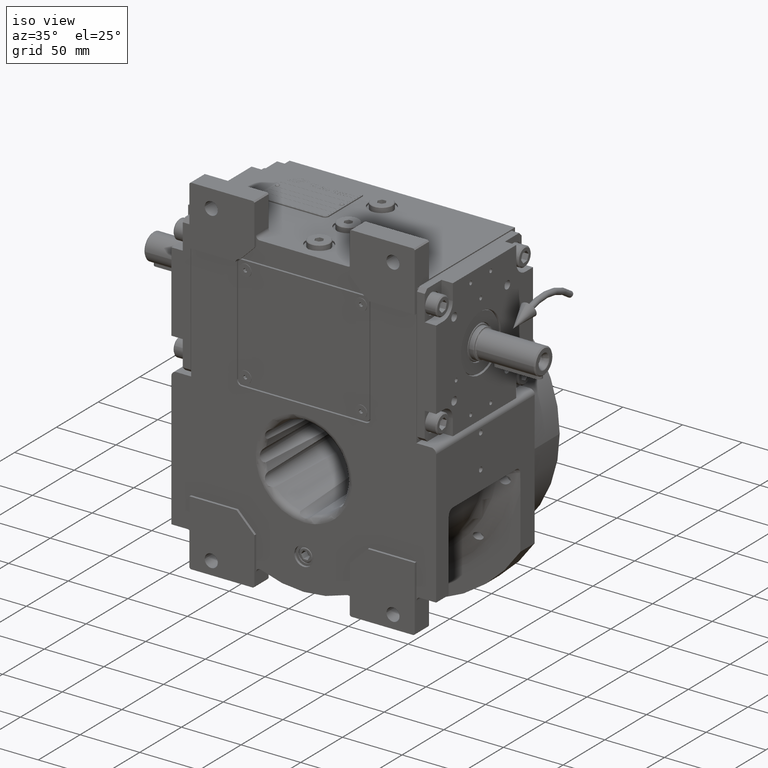
[diagram: clean part render]
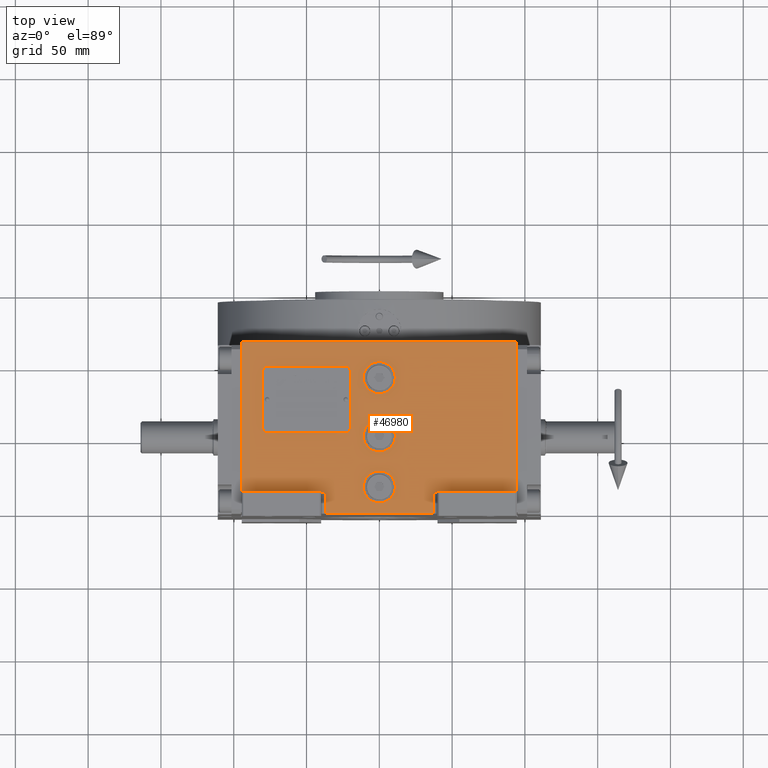
[diagram: tour spotlight — one face highlighted and labeled with its STEP entity id]
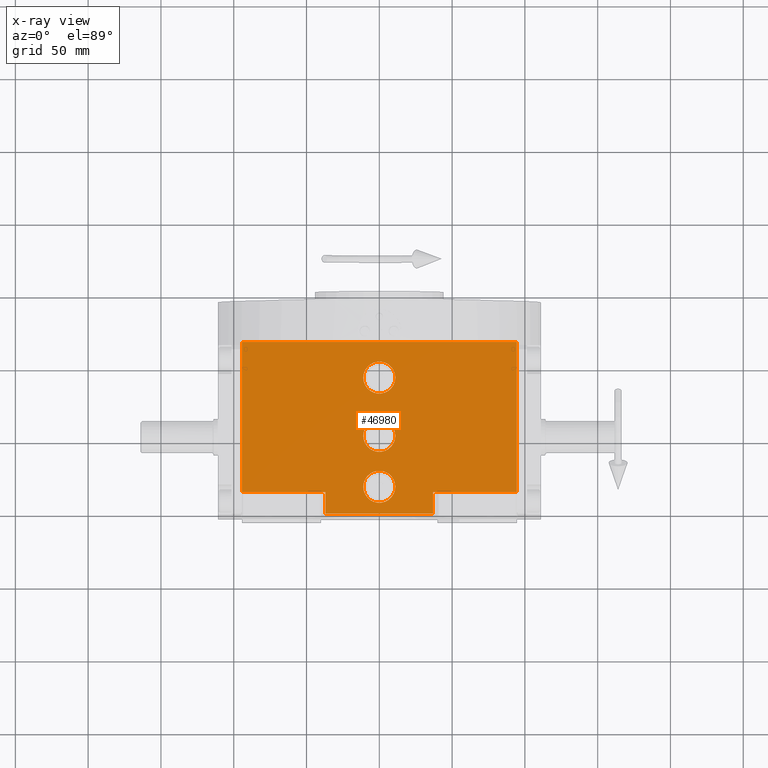
[diagram: x-ray of the same camera — body ghosted, this tour face saturated]
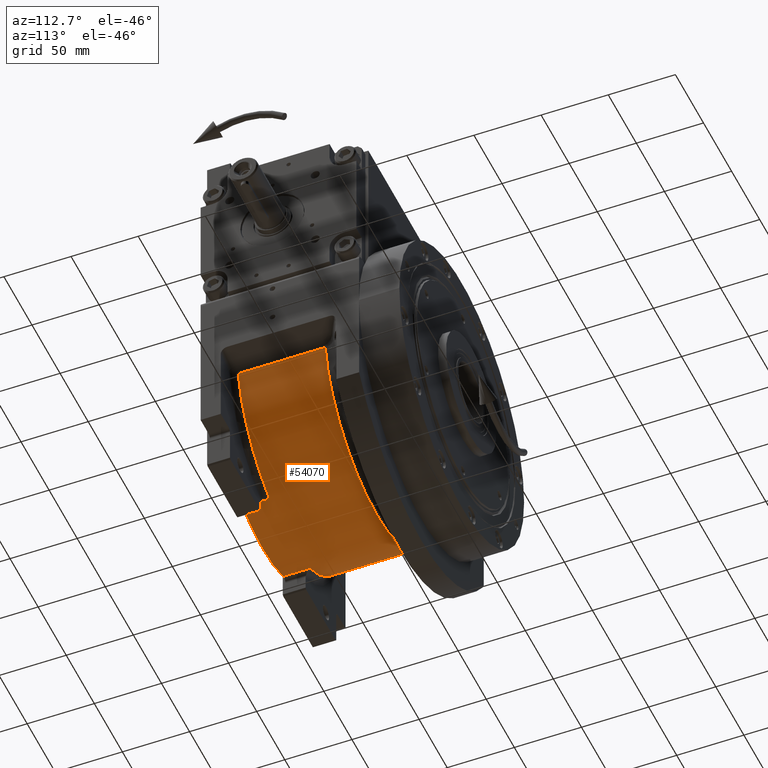
[diagram: tour spotlight — one face highlighted and labeled with its STEP entity id]
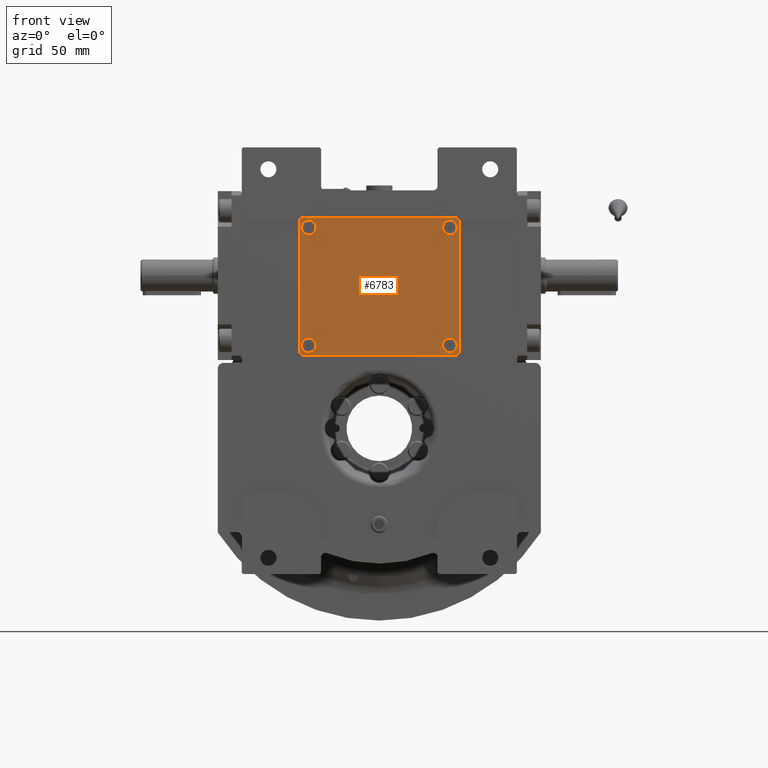
[diagram: tour spotlight — one face highlighted and labeled with its STEP entity id]
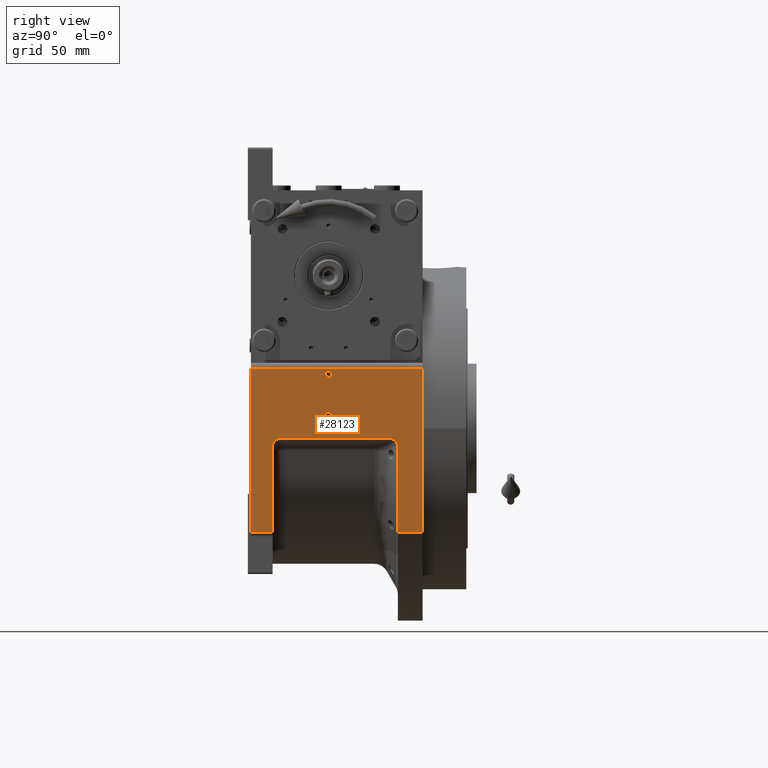
[diagram: tour spotlight — one face highlighted and labeled with its STEP entity id]
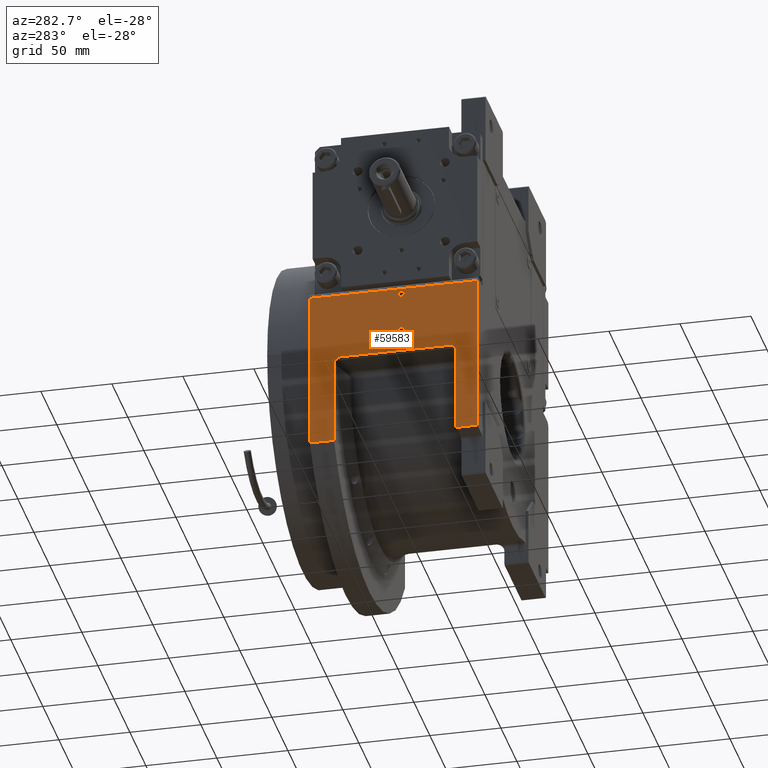
[diagram: tour spotlight — one face highlighted and labeled with its STEP entity id]
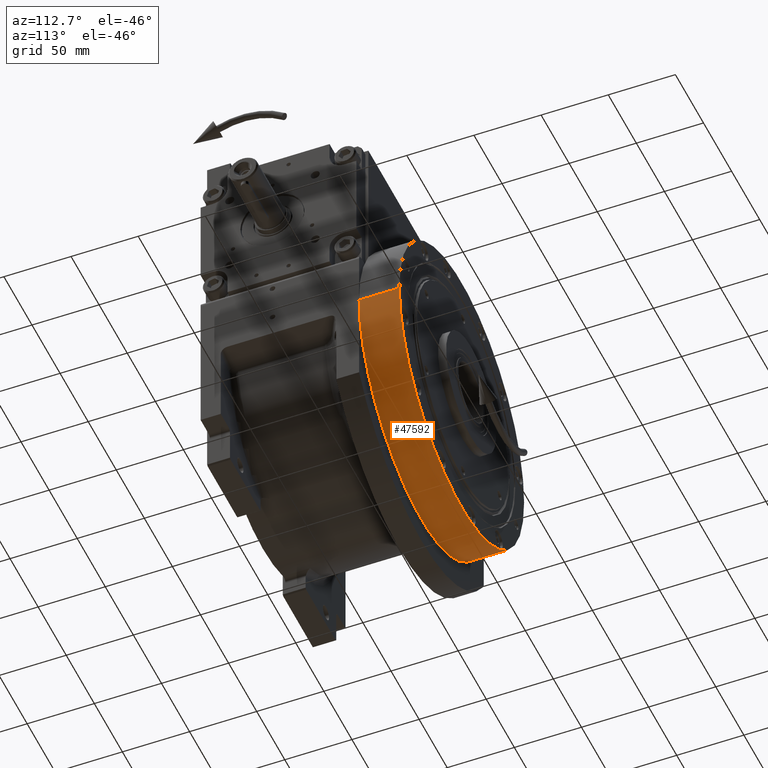
[diagram: tour spotlight — one face highlighted and labeled with its STEP entity id]
A machine part: a face-by-face anatomy tour. The part has 1973 B-rep faces; the first image is the clean iso view, then the 6 largest visible faces are spotlighted one at a time (largest first), each with its STEP entity span.

Face 1 — top view, entity #46980. An x-ray twin of the same camera follows (body ghosted, this face saturated) — the face is partly hidden behind the body. In plain terms, the highlighted planar face has unit normal (0, 0, 1).
Definition (entity closure, byte-faithful):
#95 = VERTEX_POINT ( 'NONE', #38237 ) ;
#358 = DIRECTION ( 'NONE',  ( 0.000000000000000000, 0.000000000000000000, 1.000000000000000000 ) ) ;
#386 = EDGE_CURVE ( 'NONE', #21099, #616, #25749, .T. ) ;
#395 = CARTESIAN_POINT ( 'NONE',  ( -36.99999999999929656, -53.50000000000000000, 163.5000000000000000 ) ) ;
#616 = VERTEX_POINT ( 'NONE', #60013 ) ;
#953 = ORIENTED_EDGE ( 'NONE', *, *, #51179, .F. ) ;
#1141 = ORIENTED_EDGE ( 'NONE', *, *, #32439, .T. ) ;
#1777 = CARTESIAN_POINT ( 'NONE',  ( 11.00000000000000000, -35.00000000000000000, 163.5000000000000000 ) ) ;
#2127 = VECTOR ( 'NONE', #14181, 1000.000000000000000 ) ;
#2891 = EDGE_CURVE ( 'NONE', #48728, #24355, #32022, .T. ) ;
#3245 = CARTESIAN_POINT ( 'NONE',  ( 36.99999999999934630, -38.50000000000000000, 163.5000000000000000 ) ) ;
#3262 = VECTOR ( 'NONE', #10979, 1000.000000000000000 ) ;
#3481 = CARTESIAN_POINT ( 'NONE',  ( 94.50000000000000000, -38.50000000000000000, 163.5000000000000000 ) ) ;
#5051 = ORIENTED_EDGE ( 'NONE', *, *, #22858, .F. ) ;
#5130 = EDGE_CURVE ( 'NONE', #616, #21099, #51980, .T. ) ;
#6723 = ORIENTED_EDGE ( 'NONE', *, *, #39292, .T. ) ;
#7598 = CARTESIAN_POINT ( 'NONE',  ( 36.99999999999934630, -38.50000000000000000, 163.5000000000000000 ) ) ;
#7614 = DIRECTION ( 'NONE',  ( -1.000000000000000000, 0.000000000000000000, 0.000000000000000000 ) ) ;
#7768 = VERTEX_POINT ( 'NONE', #39689 ) ;
#7795 = VECTOR ( 'NONE', #61554, 1000.000000000000000 ) ;
#8348 = CARTESIAN_POINT ( 'NONE',  ( -11.00000000000000000, -35.00000000000000000, 163.5000000000000000 ) ) ;
#8959 = CIRCLE ( 'NONE', #19938, 11.00000000000000000 ) ;
#9015 = ORIENTED_EDGE ( 'NONE', *, *, #32956, .F. ) ;
#9286 = LINE ( 'NONE', #3481, #16830 ) ;
#9359 = EDGE_CURVE ( 'NONE', #22178, #15088, #14940, .T. ) ;
#9454 = CARTESIAN_POINT ( 'NONE',  ( -36.99999999999929656, -53.50000000000000000, 163.5000000000000000 ) ) ;
#10106 = FACE_BOUND ( 'NONE', #58985, .T. ) ;
#10265 = VECTOR ( 'NONE', #55769, 1000.000000000000000 ) ;
#10274 = DIRECTION ( 'NONE',  ( 1.000000000000000000, 0.000000000000000000, 0.000000000000000000 ) ) ;
#10382 = AXIS2_PLACEMENT_3D ( 'NONE', #46898, #358, #10274 ) ;
#10979 = DIRECTION ( 'NONE',  ( 0.000000000000000000, 1.000000000000000000, 0.000000000000000000 ) ) ;
#11517 = EDGE_CURVE ( 'NONE', #21464, #18786, #61929, .T. ) ;
#11657 = CARTESIAN_POINT ( 'NONE',  ( 94.50000000000000000, 64.50000000000000000, 163.5000000000000000 ) ) ;
#11763 = DIRECTION ( 'NONE',  ( 1.000000000000000000, 0.000000000000000000, 0.000000000000000000 ) ) ;
#12709 = ORIENTED_EDGE ( 'NONE', *, *, #12872, .F. ) ;
#12872 = EDGE_CURVE ( 'NONE', #7768, #45184, #36642, .T. ) ;
#13105 = CARTESIAN_POINT ( 'NONE',  ( 0.000000000000000000, 0.000000000000000000, 163.5000000000000000 ) ) ;
#13663 = DIRECTION ( 'NONE',  ( -1.000000000000000000, 0.000000000000000000, 0.000000000000000000 ) ) ;
#14181 = DIRECTION ( 'NONE',  ( 1.000000000000000000, 0.000000000000000000, 0.000000000000000000 ) ) ;
#14940 = LINE ( 'NONE', #9454, #59346 ) ;
#15088 = VERTEX_POINT ( 'NONE', #34257 ) ;
#16830 = VECTOR ( 'NONE', #60618, 1000.000000000000000 ) ;
#17278 = DIRECTION ( 'NONE',  ( 0.000000000000000000, 0.000000000000000000, 1.000000000000000000 ) ) ;
#17612 = CARTESIAN_POINT ( 'NONE',  ( 0.000000000000000000, 40.00000000000000000, 163.5000000000000000 ) ) ;
#17660 = ORIENTED_EDGE ( 'NONE', *, *, #60788, .F. ) ;
#18423 = DIRECTION ( 'NONE',  ( -1.000000000000000000, 0.000000000000000000, 0.000000000000000000 ) ) ;
#18786 = VERTEX_POINT ( 'NONE', #32650 ) ;
#19938 = AXIS2_PLACEMENT_3D ( 'NONE', #25703, #55501, #7614 ) ;
#21099 = VERTEX_POINT ( 'NONE', #41329 ) ;
#21464 = VERTEX_POINT ( 'NONE', #66232 ) ;
#22178 = VERTEX_POINT ( 'NONE', #46417 ) ;
#22525 = AXIS2_PLACEMENT_3D ( 'NONE', #23287, #60515, #13663 ) ;
#22783 = DIRECTION ( 'NONE',  ( 1.000000000000000000, 0.000000000000000000, 0.000000000000000000 ) ) ;
#22858 = EDGE_CURVE ( 'NONE', #95, #15088, #48682, .T. ) ;
#23287 = CARTESIAN_POINT ( 'NONE',  ( 0.000000000000000000, 40.00000000000000000, 163.5000000000000000 ) ) ;
#23679 = EDGE_LOOP ( 'NONE', ( #35217, #59208 ) ) ;
#23930 = CARTESIAN_POINT ( 'NONE',  ( 0.000000000000000000, -35.00000000000000000, 163.5000000000000000 ) ) ;
#24052 = CARTESIAN_POINT ( 'NONE',  ( 94.50000000000000000, -38.50000000000000000, 163.5000000000000000 ) ) ;
#24215 = ORIENTED_EDGE ( 'NONE', *, *, #59289, .F. ) ;
#24355 = VERTEX_POINT ( 'NONE', #11657 ) ;
#24497 = LINE ( 'NONE', #3245, #2127 ) ;
#25703 = CARTESIAN_POINT ( 'NONE',  ( 0.000000000000000000, 0.000000000000000000, 163.5000000000000000 ) ) ;
#25749 = CIRCLE ( 'NONE', #55175, 11.00000000000000000 ) ;
#26424 = EDGE_LOOP ( 'NONE', ( #12709, #17660 ) ) ;
#27373 = AXIS2_PLACEMENT_3D ( 'NONE', #30056, #51507, #50859 ) ;
#27933 = CIRCLE ( 'NONE', #10382, 11.00000000000000000 ) ;
#30056 = CARTESIAN_POINT ( 'NONE',  ( -94.50000000000000000, -53.50000000000000000, 163.5000000000000000 ) ) ;
#30883 = VECTOR ( 'NONE', #11763, 1000.000000000000000 ) ;
#31041 = FACE_BOUND ( 'NONE', #23679, .T. ) ;
#32022 = LINE ( 'NONE', #48732, #30883 ) ;
#32439 = EDGE_CURVE ( 'NONE', #95, #63326, #24497, .T. ) ;
#32650 = CARTESIAN_POINT ( 'NONE',  ( -36.99999999999929656, -38.50000000000000000, 163.5000000000000000 ) ) ;
#32956 = EDGE_CURVE ( 'NONE', #22178, #18786, #67462, .T. ) ;
#33257 = AXIS2_PLACEMENT_3D ( 'NONE', #23930, #54660, #18423 ) ;
#34257 = CARTESIAN_POINT ( 'NONE',  ( 36.99999999999934630, -53.50000000000000000, 163.5000000000000000 ) ) ;
#34579 = ORIENTED_EDGE ( 'NONE', *, *, #63617, .F. ) ;
#35217 = ORIENTED_EDGE ( 'NONE', *, *, #386, .F. ) ;
#36157 = FACE_BOUND ( 'NONE', #26424, .T. ) ;
#36477 = ORIENTED_EDGE ( 'NONE', *, *, #2891, .F. ) ;
#36642 = CIRCLE ( 'NONE', #38820, 11.00000000000000000 ) ;
#36716 = CARTESIAN_POINT ( 'NONE',  ( -11.00000000000000000, 0.000000000000000000, 163.5000000000000000 ) ) ;
#37596 = CIRCLE ( 'NONE', #33257, 11.00000000000000000 ) ;
#37634 = EDGE_LOOP ( 'NONE', ( #50651, #5051, #1141, #6723, #36477, #24215, #60636, #9015 ) ) ;
#38237 = CARTESIAN_POINT ( 'NONE',  ( 36.99999999999934630, -38.50000000000000000, 163.5000000000000000 ) ) ;
#38820 = AXIS2_PLACEMENT_3D ( 'NONE', #13105, #65457, #66462 ) ;
#39292 = EDGE_CURVE ( 'NONE', #63326, #24355, #9286, .T. ) ;
#39689 = CARTESIAN_POINT ( 'NONE',  ( 11.00000000000000000, -1.179289943096200059E-15, 163.5000000000000000 ) ) ;
#40033 = CARTESIAN_POINT ( 'NONE',  ( -94.50000000000000000, -38.50000000000000000, 163.5000000000000000 ) ) ;
#41329 = CARTESIAN_POINT ( 'NONE',  ( 11.00000000000000000, 40.00000000000000000, 163.5000000000000000 ) ) ;
#43911 = CARTESIAN_POINT ( 'NONE',  ( -94.50000000000000000, -38.50000000000000000, 163.5000000000000000 ) ) ;
#45184 = VERTEX_POINT ( 'NONE', #36716 ) ;
#45733 = FACE_OUTER_BOUND ( 'NONE', #37634, .T. ) ;
#45736 = DIRECTION ( 'NONE',  ( 1.000000000000000000, 0.000000000000000000, 0.000000000000000000 ) ) ;
#46057 = PLANE ( 'NONE',  #27373 ) ;
#46417 = CARTESIAN_POINT ( 'NONE',  ( -36.99999999999929656, -53.50000000000000000, 163.5000000000000000 ) ) ;
#46898 = CARTESIAN_POINT ( 'NONE',  ( 0.000000000000000000, -35.00000000000000000, 163.5000000000000000 ) ) ;
#46980 = ADVANCED_FACE ( 'NONE', ( #36157, #10106, #31041, #45733 ), #46057, .T. ) ;
#48682 = LINE ( 'NONE', #7598, #52824 ) ;
#48728 = VERTEX_POINT ( 'NONE', #64733 ) ;
#48732 = CARTESIAN_POINT ( 'NONE',  ( -94.50000000000000000, 64.50000000000000000, 163.5000000000000000 ) ) ;
#50651 = ORIENTED_EDGE ( 'NONE', *, *, #9359, .T. ) ;
#50859 = DIRECTION ( 'NONE',  ( 1.000000000000000000, 0.000000000000000000, 0.000000000000000000 ) ) ;
#51179 = EDGE_CURVE ( 'NONE', #62937, #66239, #37596, .T. ) ;
#51507 = DIRECTION ( 'NONE',  ( 0.000000000000000000, 0.000000000000000000, 1.000000000000000000 ) ) ;
#51980 = CIRCLE ( 'NONE', #22525, 11.00000000000000000 ) ;
#52824 = VECTOR ( 'NONE', #64731, 1000.000000000000000 ) ;
#54660 = DIRECTION ( 'NONE',  ( 0.000000000000000000, 0.000000000000000000, 1.000000000000000000 ) ) ;
#55175 = AXIS2_PLACEMENT_3D ( 'NONE', #17612, #17278, #22783 ) ;
#55501 = DIRECTION ( 'NONE',  ( 0.000000000000000000, 0.000000000000000000, 1.000000000000000000 ) ) ;
#55769 = DIRECTION ( 'NONE',  ( 1.000000000000000000, 0.000000000000000000, 0.000000000000000000 ) ) ;
#58985 = EDGE_LOOP ( 'NONE', ( #34579, #953 ) ) ;
#59208 = ORIENTED_EDGE ( 'NONE', *, *, #5130, .F. ) ;
#59289 = EDGE_CURVE ( 'NONE', #21464, #48728, #66685, .T. ) ;
#59346 = VECTOR ( 'NONE', #45736, 1000.000000000000000 ) ;
#60013 = CARTESIAN_POINT ( 'NONE',  ( -11.00000000000000000, 40.00000000000000000, 163.5000000000000000 ) ) ;
#60515 = DIRECTION ( 'NONE',  ( 0.000000000000000000, 0.000000000000000000, 1.000000000000000000 ) ) ;
#60618 = DIRECTION ( 'NONE',  ( 0.000000000000000000, 1.000000000000000000, 0.000000000000000000 ) ) ;
#60636 = ORIENTED_EDGE ( 'NONE', *, *, #11517, .T. ) ;
#60788 = EDGE_CURVE ( 'NONE', #45184, #7768, #8959, .T. ) ;
#61554 = DIRECTION ( 'NONE',  ( 0.000000000000000000, 1.000000000000000000, 0.000000000000000000 ) ) ;
#61929 = LINE ( 'NONE', #43911, #10265 ) ;
#62937 = VERTEX_POINT ( 'NONE', #8348 ) ;
#63326 = VERTEX_POINT ( 'NONE', #24052 ) ;
#63617 = EDGE_CURVE ( 'NONE', #66239, #62937, #27933, .T. ) ;
#64731 = DIRECTION ( 'NONE',  ( 0.000000000000000000, -1.000000000000000000, 0.000000000000000000 ) ) ;
#64733 = CARTESIAN_POINT ( 'NONE',  ( -94.50000000000000000, 64.50000000000000000, 163.5000000000000000 ) ) ;
#65457 = DIRECTION ( 'NONE',  ( 0.000000000000000000, 0.000000000000000000, 1.000000000000000000 ) ) ;
#66232 = CARTESIAN_POINT ( 'NONE',  ( -94.50000000000000000, -38.50000000000000000, 163.5000000000000000 ) ) ;
#66239 = VERTEX_POINT ( 'NONE', #1777 ) ;
#66462 = DIRECTION ( 'NONE',  ( 1.000000000000000000, 0.000000000000000000, 0.000000000000000000 ) ) ;
#66685 = LINE ( 'NONE', #40033, #7795 ) ;
#67462 = LINE ( 'NONE', #395, #3262 ) ;

Face 2 — auxiliary view, entity #54070. In plain terms, the highlighted cylindrical surface (partial cylindrical patch) has radius 93 mm, axis along (0, 1, 0).
Definition (entity closure, byte-faithful):
#389 = DIRECTION ( 'NONE',  ( 0.9865608847878558629, 0.000000000000000000, -0.1633940653959109757 ) ) ;
#2080 = CARTESIAN_POINT ( 'NONE',  ( -35.84375000000000000, -53.50000000000000000, -85.81506619433150718 ) ) ;
#3022 = CARTESIAN_POINT ( 'NONE',  ( -91.75016228501930016, -33.50000000000000000, -15.19564808333695183 ) ) ;
#3044 = VERTEX_POINT ( 'NONE', #23104 ) ;
#7796 = DIRECTION ( 'NONE',  ( 1.776356839400250070E-15, 1.000000000000000000, -7.105427357601000281E-16 ) ) ;
#8028 = CARTESIAN_POINT ( 'NONE',  ( 1.421085471520200056E-14, -53.50000000000000000, -4.263256414560599853E-14 ) ) ;
#8788 = CARTESIAN_POINT ( 'NONE',  ( -4.517455316885850268E-28, -53.50000000000000000, 0.000000000000000000 ) ) ;
#9176 = CARTESIAN_POINT ( 'NONE',  ( -35.84375000000000000, -33.50000000000000000, -85.81506619433150718 ) ) ;
#9385 = AXIS2_PLACEMENT_3D ( 'NONE', #18824, #60887, #34927 ) ;
#10129 = DIRECTION ( 'NONE',  ( 0.000000000000000000, 0.000000000000000000, 1.000000000000000000 ) ) ;
#10975 = CARTESIAN_POINT ( 'NONE',  ( 1.421085471520200056E-14, -33.50000000000000000, 1.421085471520200056E-14 ) ) ;
#12310 = DIRECTION ( 'NONE',  ( 0.000000000000000000, -1.000000000000000000, 0.000000000000000000 ) ) ;
#13889 = CARTESIAN_POINT ( 'NONE',  ( 91.75016228501930016, 31.21878281274259948, -15.19564808333685058 ) ) ;
#13982 = EDGE_CURVE ( 'NONE', #62677, #35499, #19237, .T. ) ;
#14291 = LINE ( 'NONE', #3022, #42509 ) ;
#15625 = EDGE_CURVE ( 'NONE', #35499, #22755, #14291, .T. ) ;
#15810 = AXIS2_PLACEMENT_3D ( 'NONE', #37856, #63467, #64158 ) ;
#15951 = ORIENTED_EDGE ( 'NONE', *, *, #63605, .T. ) ;
#16412 = EDGE_LOOP ( 'NONE', ( #51057, #54528, #40077, #60867, #62135, #15951, #26571, #33093 ) ) ;
#18824 = CARTESIAN_POINT ( 'NONE',  ( -5.684341886080798963E-14, -33.50000000000000000, -4.973799150320699408E-14 ) ) ;
#19237 = CIRCLE ( 'NONE', #9385, 93.00000000000001421 ) ;
#19814 = EDGE_CURVE ( 'NONE', #20431, #62677, #33516, .T. ) ;
#20431 = VERTEX_POINT ( 'NONE', #2080 ) ;
#20933 = VECTOR ( 'NONE', #7796, 1000.000000000000000 ) ;
#21256 = LINE ( 'NONE', #21600, #30094 ) ;
#21600 = CARTESIAN_POINT ( 'NONE',  ( 91.75016228501930016, 31.21878281274199907, -15.19564808333685058 ) ) ;
#22755 = VERTEX_POINT ( 'NONE', #42541 ) ;
#23104 = CARTESIAN_POINT ( 'NONE',  ( 35.84375000000000000, -53.50000000000000000, -85.81506619433150718 ) ) ;
#24247 = CYLINDRICAL_SURFACE ( 'NONE', #33362, 93.00000000000000000 ) ;
#26225 = VECTOR ( 'NONE', #12310, 1000.000000000000000 ) ;
#26571 = ORIENTED_EDGE ( 'NONE', *, *, #42806, .T. ) ;
#27001 = VERTEX_POINT ( 'NONE', #13889 ) ;
#28141 = CARTESIAN_POINT ( 'NONE',  ( 35.84375000000000000, -33.50000000000000000, -85.81506619433150718 ) ) ;
#30094 = VECTOR ( 'NONE', #42436, 1000.000000000000000 ) ;
#30324 = DIRECTION ( 'NONE',  ( -0.3854166666666672403, 0.000000000000000000, -0.9227426472508764022 ) ) ;
#30473 = AXIS2_PLACEMENT_3D ( 'NONE', #10975, #53051, #389 ) ;
#33093 = ORIENTED_EDGE ( 'NONE', *, *, #44282, .T. ) ;
#33362 = AXIS2_PLACEMENT_3D ( 'NONE', #8788, #50534, #10129 ) ;
#33516 = LINE ( 'NONE', #53989, #20933 ) ;
#34552 = CARTESIAN_POINT ( 'NONE',  ( -91.75016228508779648, -33.50000000000000000, -15.19564808292360070 ) ) ;
#34927 = DIRECTION ( 'NONE',  ( -0.3854166666666659080, 0.000000000000000000, -0.9227426472508768462 ) ) ;
#35499 = VERTEX_POINT ( 'NONE', #34552 ) ;
#37856 = CARTESIAN_POINT ( 'NONE',  ( 1.421085471520200056E-14, 31.21878281274215183, 0.000000000000000000 ) ) ;
#40077 = ORIENTED_EDGE ( 'NONE', *, *, #13982, .T. ) ;
#40287 = CIRCLE ( 'NONE', #44693, 92.99999999999995737 ) ;
#40541 = EDGE_CURVE ( 'NONE', #27001, #22755, #63884, .T. ) ;
#42436 = DIRECTION ( 'NONE',  ( 0.000000000000000000, -1.000000000000000000, 0.000000000000000000 ) ) ;
#42509 = VECTOR ( 'NONE', #65608, 1000.000000000000000 ) ;
#42541 = CARTESIAN_POINT ( 'NONE',  ( -91.75030103113060420, 31.21878279875124917, -15.19503959111690072 ) ) ;
#42806 = EDGE_CURVE ( 'NONE', #60232, #55789, #47897, .T. ) ;
#43495 = EDGE_CURVE ( 'NONE', #20431, #3044, #40287, .T. ) ;
#44282 = EDGE_CURVE ( 'NONE', #55789, #3044, #54071, .T. ) ;
#44693 = AXIS2_PLACEMENT_3D ( 'NONE', #8028, #50122, #30324 ) ;
#47897 = CIRCLE ( 'NONE', #30473, 93.00000000000001421 ) ;
#50122 = DIRECTION ( 'NONE',  ( 0.000000000000000000, -1.000000000000000000, 0.000000000000000000 ) ) ;
#50205 = FACE_OUTER_BOUND ( 'NONE', #16412, .T. ) ;
#50460 = CARTESIAN_POINT ( 'NONE',  ( 91.75016228514499517, -33.50000000000000000, -15.19564808257825028 ) ) ;
#50534 = DIRECTION ( 'NONE',  ( 0.000000000000000000, 1.000000000000000000, 0.000000000000000000 ) ) ;
#51057 = ORIENTED_EDGE ( 'NONE', *, *, #43495, .F. ) ;
#53051 = DIRECTION ( 'NONE',  ( 0.000000000000000000, 1.000000000000000000, 0.000000000000000000 ) ) ;
#53989 = CARTESIAN_POINT ( 'NONE',  ( -35.84375000000000000, -53.50000000000000000, -85.81506619433150718 ) ) ;
#54070 = ADVANCED_FACE ( 'NONE', ( #50205 ), #24247, .T. ) ;
#54071 = LINE ( 'NONE', #28141, #26225 ) ;
#54528 = ORIENTED_EDGE ( 'NONE', *, *, #19814, .T. ) ;
#55789 = VERTEX_POINT ( 'NONE', #59029 ) ;
#59029 = CARTESIAN_POINT ( 'NONE',  ( 35.84375000000000000, -33.50000000000000000, -85.81506619433150718 ) ) ;
#60232 = VERTEX_POINT ( 'NONE', #50460 ) ;
#60867 = ORIENTED_EDGE ( 'NONE', *, *, #15625, .T. ) ;
#60887 = DIRECTION ( 'NONE',  ( 0.000000000000000000, 1.000000000000000000, 0.000000000000000000 ) ) ;
#62135 = ORIENTED_EDGE ( 'NONE', *, *, #40541, .F. ) ;
#62677 = VERTEX_POINT ( 'NONE', #9176 ) ;
#63467 = DIRECTION ( 'NONE',  ( 5.743225055535190204E-15, 1.000000000000000000, 2.439003765979129920E-14 ) ) ;
#63605 = EDGE_CURVE ( 'NONE', #27001, #60232, #21256, .T. ) ;
#63884 = CIRCLE ( 'NONE', #15810, 93.00000000000001421 ) ;
#64158 = DIRECTION ( 'NONE',  ( 0.9865608847851539132, -1.678764654171103455E-15, -0.1633940654122239822 ) ) ;
#65608 = DIRECTION ( 'NONE',  ( 0.000000000000000000, 1.000000000000000000, 0.000000000000000000 ) ) ;

Face 3 — front view, entity #6783. In plain terms, the highlighted planar face has unit normal (0, -1, -0).
Definition (entity closure, byte-faithful):
#1077 = CARTESIAN_POINT ( 'NONE',  ( -48.49999999999976552, -40.49999999999976552, 3.000000000000002665 ) ) ;
#1421 = EDGE_LOOP ( 'NONE', ( #49336, #65519 ) ) ;
#1488 = DIRECTION ( 'NONE',  ( 1.000000000000000000, 1.541976423090496028E-15, 0.000000000000000000 ) ) ;
#1536 = CARTESIAN_POINT ( 'NONE',  ( -52.99999999999976552, -40.49999999999976552, 3.000000000000002665 ) ) ;
#1554 = FACE_BOUND ( 'NONE', #43418, .T. ) ;
#2106 = AXIS2_PLACEMENT_3D ( 'NONE', #11801, #53544, #26957 ) ;
#2574 = DIRECTION ( 'NONE',  ( -0.7071067811865474617, -0.7071067811865474617, -8.381647117973243426E-31 ) ) ;
#2589 = VERTEX_POINT ( 'NONE', #33786 ) ;
#2642 = EDGE_CURVE ( 'NONE', #31123, #11627, #8440, .T. ) ;
#3792 = CIRCLE ( 'NONE', #49647, 4.499999999999997335 ) ;
#4294 = DIRECTION ( 'NONE',  ( -1.000000000000000000, -1.541976423090496028E-15, 0.000000000000000000 ) ) ;
#4617 = LINE ( 'NONE', #46036, #12256 ) ;
#5381 = EDGE_CURVE ( 'NONE', #63590, #27657, #27267, .T. ) ;
#5609 = VECTOR ( 'NONE', #2574, 1000.000000000000114 ) ;
#6006 = PLANE ( 'NONE',  #2106 ) ;
#6359 = CARTESIAN_POINT ( 'NONE',  ( -54.99999999999976552, 45.50000000000000000, 3.000000000000238476 ) ) ;
#6570 = ORIENTED_EDGE ( 'NONE', *, *, #51734, .F. ) ;
#6602 = DIRECTION ( 'NONE',  ( 8.269165134273610838E-31, 0.000000000000000000, 1.000000000000000000 ) ) ;
#6735 = CARTESIAN_POINT ( 'NONE',  ( 55.00000000000000000, -45.50000000000000000, 3.000000000000002665 ) ) ;
#6783 = ADVANCED_FACE ( 'NONE', ( #52871, #1554, #12140, #12478, #63136 ), #6006, .T. ) ;
#7108 = EDGE_CURVE ( 'NONE', #51200, #25987, #28443, .T. ) ;
#8440 = CIRCLE ( 'NONE', #63030, 4.499999999999997335 ) ;
#8576 = AXIS2_PLACEMENT_3D ( 'NONE', #32058, #46758, #58002 ) ;
#8953 = ORIENTED_EDGE ( 'NONE', *, *, #5381, .T. ) ;
#9960 = VERTEX_POINT ( 'NONE', #64658 ) ;
#9984 = CARTESIAN_POINT ( 'NONE',  ( 55.00000000000023448, 45.50000000000000000, 3.000000000000002665 ) ) ;
#10171 = EDGE_CURVE ( 'NONE', #45213, #22287, #44837, .T. ) ;
#10184 = EDGE_CURVE ( 'NONE', #11627, #31123, #23477, .T. ) ;
#10240 = CARTESIAN_POINT ( 'NONE',  ( 53.00000000000023448, -40.50000000000000000, 2.999999999999766853 ) ) ;
#10996 = DIRECTION ( 'NONE',  ( 8.269165134273610838E-31, 0.000000000000000000, 1.000000000000000000 ) ) ;
#11202 = DIRECTION ( 'NONE',  ( 8.381647117973250432E-31, 1.000000000000000000, 0.000000000000000000 ) ) ;
#11627 = VERTEX_POINT ( 'NONE', #10240 ) ;
#11749 = CARTESIAN_POINT ( 'NONE',  ( 53.00000000000000000, -47.50000000000000000, 3.000000000000002665 ) ) ;
#11801 = CARTESIAN_POINT ( 'NONE',  ( 0.000000000000000000, 0.000000000000000000, 3.000000000000002665 ) ) ;
#12140 = FACE_BOUND ( 'NONE', #14327, .T. ) ;
#12256 = VECTOR ( 'NONE', #61777, 1000.000000000000000 ) ;
#12413 = LINE ( 'NONE', #11749, #20749 ) ;
#12458 = ORIENTED_EDGE ( 'NONE', *, *, #36075, .T. ) ;
#12478 = FACE_BOUND ( 'NONE', #1421, .T. ) ;
#12779 = DIRECTION ( 'NONE',  ( -8.381647117973250432E-31, -1.000000000000000000, 0.000000000000000000 ) ) ;
#14327 = EDGE_LOOP ( 'NONE', ( #45679, #54795 ) ) ;
#14684 = AXIS2_PLACEMENT_3D ( 'NONE', #66696, #18831, #55756 ) ;
#16265 = EDGE_CURVE ( 'NONE', #27657, #20381, #12413, .T. ) ;
#16548 = DIRECTION ( 'NONE',  ( -1.000000000000000000, -1.541976423090496028E-15, 0.000000000000000000 ) ) ;
#18549 = EDGE_CURVE ( 'NONE', #48534, #26692, #19680, .T. ) ;
#18831 = DIRECTION ( 'NONE',  ( 8.269165134273610838E-31, 0.000000000000000000, 1.000000000000000000 ) ) ;
#19680 = LINE ( 'NONE', #35094, #5609 ) ;
#20381 = VERTEX_POINT ( 'NONE', #30915 ) ;
#20749 = VECTOR ( 'NONE', #32990, 1000.000000000000114 ) ;
#21544 = DIRECTION ( 'NONE',  ( 8.269165134273610838E-31, 0.000000000000000000, 1.000000000000000000 ) ) ;
#21774 = EDGE_CURVE ( 'NONE', #20381, #45213, #53615, .T. ) ;
#21779 = CARTESIAN_POINT ( 'NONE',  ( 53.00000000000023448, 47.50000000000000000, 3.000000000000002665 ) ) ;
#22287 = VERTEX_POINT ( 'NONE', #21779 ) ;
#23355 = VECTOR ( 'NONE', #49728, 1000.000000000000114 ) ;
#23438 = CARTESIAN_POINT ( 'NONE',  ( -54.99999999999976552, 45.50000000000000000, 3.000000000000238476 ) ) ;
#23477 = CIRCLE ( 'NONE', #14684, 4.499999999999997335 ) ;
#25422 = CARTESIAN_POINT ( 'NONE',  ( -55.00000000000000000, -45.49999999999976552, 3.000000000000238476 ) ) ;
#25548 = VERTEX_POINT ( 'NONE', #39533 ) ;
#25987 = VERTEX_POINT ( 'NONE', #43907 ) ;
#26234 = DIRECTION ( 'NONE',  ( 8.269165134273610838E-31, 0.000000000000000000, 1.000000000000000000 ) ) ;
#26322 = ORIENTED_EDGE ( 'NONE', *, *, #53894, .F. ) ;
#26692 = VERTEX_POINT ( 'NONE', #6359 ) ;
#26957 = DIRECTION ( 'NONE',  ( 1.000000000000000000, 8.381647117973250432E-31, 8.269165134273610838E-31 ) ) ;
#27267 = LINE ( 'NONE', #37847, #30031 ) ;
#27657 = VERTEX_POINT ( 'NONE', #53088 ) ;
#28443 = CIRCLE ( 'NONE', #32806, 4.499999999999997335 ) ;
#28905 = LINE ( 'NONE', #29584, #23355 ) ;
#29052 = CIRCLE ( 'NONE', #60677, 4.499999999999997335 ) ;
#29584 = CARTESIAN_POINT ( 'NONE',  ( -55.00000000000000000, -45.49999999999976552, 3.000000000000238476 ) ) ;
#30031 = VECTOR ( 'NONE', #32387, 1000.000000000000000 ) ;
#30194 = CIRCLE ( 'NONE', #51995, 4.499999999999997335 ) ;
#30353 = ORIENTED_EDGE ( 'NONE', *, *, #35187, .T. ) ;
#30915 = CARTESIAN_POINT ( 'NONE',  ( 55.00000000000000000, -45.50000000000000000, 3.000000000000002665 ) ) ;
#31123 = VERTEX_POINT ( 'NONE', #41283 ) ;
#31584 = CIRCLE ( 'NONE', #8576, 4.499999999999997335 ) ;
#31915 = DIRECTION ( 'NONE',  ( -1.000000000000000000, -1.541976423090496028E-15, 0.000000000000000000 ) ) ;
#32058 = CARTESIAN_POINT ( 'NONE',  ( 48.50000000000023448, 40.49999999999999289, 3.000000000000002665 ) ) ;
#32319 = ORIENTED_EDGE ( 'NONE', *, *, #18549, .T. ) ;
#32387 = DIRECTION ( 'NONE',  ( 1.000000000000000000, 8.381647117973250432E-31, 8.269165134273610838E-31 ) ) ;
#32806 = AXIS2_PLACEMENT_3D ( 'NONE', #63717, #42222, #16548 ) ;
#32990 = DIRECTION ( 'NONE',  ( 0.7071067811865474617, 0.7071067811865474617, 8.381647117973243426E-31 ) ) ;
#33583 = ORIENTED_EDGE ( 'NONE', *, *, #16265, .T. ) ;
#33786 = CARTESIAN_POINT ( 'NONE',  ( 53.00000000000023448, 40.49999999999999289, 3.000000000000002665 ) ) ;
#33949 = DIRECTION ( 'NONE',  ( 1.000000000000000000, 1.541976423090496028E-15, 0.000000000000000000 ) ) ;
#34935 = DIRECTION ( 'NONE',  ( -0.7071067811865474617, 0.7071067811865474617, -3.697785493223490101E-32 ) ) ;
#35094 = CARTESIAN_POINT ( 'NONE',  ( -52.99999999999976552, 47.50000000000000000, 3.000000000000231815 ) ) ;
#35187 = EDGE_CURVE ( 'NONE', #26692, #42666, #63753, .T. ) ;
#36075 = EDGE_CURVE ( 'NONE', #22287, #48534, #4617, .T. ) ;
#37635 = ORIENTED_EDGE ( 'NONE', *, *, #51985, .T. ) ;
#37847 = CARTESIAN_POINT ( 'NONE',  ( -53.00000000000000000, -47.49999999999976552, 3.000000000000238476 ) ) ;
#37893 = EDGE_LOOP ( 'NONE', ( #60911, #56370, #12458, #32319, #30353, #37635, #8953, #33583 ) ) ;
#38776 = EDGE_LOOP ( 'NONE', ( #6570, #42144 ) ) ;
#39533 = CARTESIAN_POINT ( 'NONE',  ( -43.99999999999975842, -40.49999999999976552, 2.999999999999995559 ) ) ;
#41283 = CARTESIAN_POINT ( 'NONE',  ( 44.00000000000023448, -40.50000000000000000, 2.999999999999995559 ) ) ;
#41377 = CARTESIAN_POINT ( 'NONE',  ( 48.50000000000023448, 40.49999999999999289, 3.000000000000002665 ) ) ;
#42144 = ORIENTED_EDGE ( 'NONE', *, *, #56738, .F. ) ;
#42219 = CARTESIAN_POINT ( 'NONE',  ( -52.99999999999976552, 47.50000000000000000, 3.000000000000231815 ) ) ;
#42222 = DIRECTION ( 'NONE',  ( 8.269165134273610838E-31, 0.000000000000000000, 1.000000000000000000 ) ) ;
#42666 = VERTEX_POINT ( 'NONE', #25422 ) ;
#43246 = EDGE_CURVE ( 'NONE', #2589, #9960, #31584, .T. ) ;
#43418 = EDGE_LOOP ( 'NONE', ( #47639, #26322 ) ) ;
#43907 = CARTESIAN_POINT ( 'NONE',  ( -43.99999999999975842, 40.49999999999999289, 3.000000000000009770 ) ) ;
#44837 = LINE ( 'NONE', #65349, #63784 ) ;
#45213 = VERTEX_POINT ( 'NONE', #9984 ) ;
#45679 = ORIENTED_EDGE ( 'NONE', *, *, #66106, .F. ) ;
#45709 = CARTESIAN_POINT ( 'NONE',  ( 48.50000000000023448, -40.50000000000000000, 2.999999999999766853 ) ) ;
#45962 = CIRCLE ( 'NONE', #66705, 4.499999999999997335 ) ;
#46036 = CARTESIAN_POINT ( 'NONE',  ( 53.00000000000023448, 47.50000000000000000, 3.000000000000002665 ) ) ;
#46084 = VECTOR ( 'NONE', #12779, 1000.000000000000000 ) ;
#46758 = DIRECTION ( 'NONE',  ( 8.269165134273610838E-31, 0.000000000000000000, 1.000000000000000000 ) ) ;
#47226 = CARTESIAN_POINT ( 'NONE',  ( -53.00000000000000000, -47.49999999999976552, 3.000000000000238476 ) ) ;
#47321 = VECTOR ( 'NONE', #11202, 1000.000000000000000 ) ;
#47639 = ORIENTED_EDGE ( 'NONE', *, *, #43246, .F. ) ;
#48534 = VERTEX_POINT ( 'NONE', #42219 ) ;
#48703 = CARTESIAN_POINT ( 'NONE',  ( -48.49999999999976552, -40.49999999999976552, 3.000000000000002665 ) ) ;
#49336 = ORIENTED_EDGE ( 'NONE', *, *, #10184, .F. ) ;
#49647 = AXIS2_PLACEMENT_3D ( 'NONE', #48703, #6602, #1488 ) ;
#49728 = DIRECTION ( 'NONE',  ( 0.7071067811865474617, -0.7071067811865474617, 3.697785493223490101E-32 ) ) ;
#51200 = VERTEX_POINT ( 'NONE', #56360 ) ;
#51734 = EDGE_CURVE ( 'NONE', #25548, #64689, #3792, .T. ) ;
#51985 = EDGE_CURVE ( 'NONE', #42666, #63590, #28905, .T. ) ;
#51995 = AXIS2_PLACEMENT_3D ( 'NONE', #54104, #54773, #33949 ) ;
#52871 = FACE_OUTER_BOUND ( 'NONE', #37893, .T. ) ;
#53088 = CARTESIAN_POINT ( 'NONE',  ( 53.00000000000000000, -47.50000000000000000, 3.000000000000002665 ) ) ;
#53544 = DIRECTION ( 'NONE',  ( -8.269165134273610838E-31, -1.386184482314585796E-60, 1.000000000000000000 ) ) ;
#53615 = LINE ( 'NONE', #6735, #47321 ) ;
#53894 = EDGE_CURVE ( 'NONE', #9960, #2589, #29052, .T. ) ;
#54104 = CARTESIAN_POINT ( 'NONE',  ( -48.49999999999976552, 40.49999999999999289, 3.000000000000231815 ) ) ;
#54773 = DIRECTION ( 'NONE',  ( 8.269165134273610838E-31, 0.000000000000000000, 1.000000000000000000 ) ) ;
#54795 = ORIENTED_EDGE ( 'NONE', *, *, #7108, .F. ) ;
#55756 = DIRECTION ( 'NONE',  ( 1.000000000000000000, 1.541976423090496028E-15, 0.000000000000000000 ) ) ;
#56360 = CARTESIAN_POINT ( 'NONE',  ( -52.99999999999976552, 40.49999999999999289, 3.000000000000231815 ) ) ;
#56370 = ORIENTED_EDGE ( 'NONE', *, *, #10171, .T. ) ;
#56738 = EDGE_CURVE ( 'NONE', #64689, #25548, #45962, .T. ) ;
#57079 = DIRECTION ( 'NONE',  ( -1.000000000000000000, -1.541976423090496028E-15, 0.000000000000000000 ) ) ;
#58002 = DIRECTION ( 'NONE',  ( 1.000000000000000000, 1.541976423090496028E-15, 0.000000000000000000 ) ) ;
#60677 = AXIS2_PLACEMENT_3D ( 'NONE', #41377, #21544, #57079 ) ;
#60911 = ORIENTED_EDGE ( 'NONE', *, *, #21774, .T. ) ;
#61777 = DIRECTION ( 'NONE',  ( -1.000000000000000000, -8.381647117973250432E-31, -8.269165134273610838E-31 ) ) ;
#63030 = AXIS2_PLACEMENT_3D ( 'NONE', #45709, #26234, #4294 ) ;
#63136 = FACE_BOUND ( 'NONE', #38776, .T. ) ;
#63590 = VERTEX_POINT ( 'NONE', #47226 ) ;
#63717 = CARTESIAN_POINT ( 'NONE',  ( -48.49999999999976552, 40.49999999999999289, 3.000000000000231815 ) ) ;
#63753 = LINE ( 'NONE', #23438, #46084 ) ;
#63784 = VECTOR ( 'NONE', #34935, 1000.000000000000114 ) ;
#64658 = CARTESIAN_POINT ( 'NONE',  ( 44.00000000000023448, 40.49999999999999289, 3.000000000000002665 ) ) ;
#64689 = VERTEX_POINT ( 'NONE', #1536 ) ;
#65349 = CARTESIAN_POINT ( 'NONE',  ( 55.00000000000023448, 45.50000000000000000, 3.000000000000002665 ) ) ;
#65519 = ORIENTED_EDGE ( 'NONE', *, *, #2642, .F. ) ;
#66106 = EDGE_CURVE ( 'NONE', #25987, #51200, #30194, .T. ) ;
#66696 = CARTESIAN_POINT ( 'NONE',  ( 48.50000000000023448, -40.50000000000000000, 2.999999999999766853 ) ) ;
#66705 = AXIS2_PLACEMENT_3D ( 'NONE', #1077, #10996, #31915 ) ;

Face 4 — right view, entity #28123. In plain terms, the highlighted planar face has unit normal (1, 0, -0).
Definition (entity closure, byte-faithful):
#43 = AXIS2_PLACEMENT_3D ( 'NONE', #30383, #51177, #65108 ) ;
#114 = CARTESIAN_POINT ( 'NONE',  ( 111.0000000000000000, -53.50000000000000000, -71.43528539874399996 ) ) ;
#295 = CARTESIAN_POINT ( 'NONE',  ( 110.9999999999999574, -38.49999999999984368, -9.144127173638265660 ) ) ;
#1385 = CARTESIAN_POINT ( 'NONE',  ( 111.0000000000000000, -53.50000000000000000, 41.00000000000000000 ) ) ;
#1634 = VERTEX_POINT ( 'NONE', #61077 ) ;
#2498 = DIRECTION ( 'NONE',  ( 1.000000000000000000, 0.000000000000000000, 0.000000000000000000 ) ) ;
#3013 = EDGE_CURVE ( 'NONE', #12968, #11942, #3539, .T. ) ;
#3539 = LINE ( 'NONE', #61004, #19970 ) ;
#4406 = EDGE_CURVE ( 'NONE', #63064, #17871, #55631, .T. ) ;
#4836 = AXIS2_PLACEMENT_3D ( 'NONE', #57814, #22617, #43451 ) ;
#4845 = CARTESIAN_POINT ( 'NONE',  ( 110.9999999999999289, 47.46019542777067812, -20.85051949887152745 ) ) ;
#4883 = ORIENTED_EDGE ( 'NONE', *, *, #39794, .T. ) ;
#4993 = EDGE_CURVE ( 'NONE', #66046, #26670, #34385, .T. ) ;
#5340 = CARTESIAN_POINT ( 'NONE',  ( 110.9999999999999716, 43.19493036065947678, -7.045511204842088482 ) ) ;
#5986 = CIRCLE ( 'NONE', #66109, 2.100000000000000089 ) ;
#6023 = CARTESIAN_POINT ( 'NONE',  ( 110.9999999999999716, 46.32234190798379103, -8.967372511752580877 ) ) ;
#6728 = CARTESIAN_POINT ( 'NONE',  ( 111.0000000000000000, 64.50000000000000000, 41.00000000000000000 ) ) ;
#7707 = ORIENTED_EDGE ( 'NONE', *, *, #48017, .T. ) ;
#8610 = DIRECTION ( 'NONE',  ( -6.319570704518690450E-16, 0.000000000000000000, -1.000000000000000000 ) ) ;
#9311 = CARTESIAN_POINT ( 'NONE',  ( 110.9999999999999147, 47.39592956473512686, -17.94582316151957713 ) ) ;
#9492 = CARTESIAN_POINT ( 'NONE',  ( 111.0000000000000000, 2.100000000000000089, 37.00000000000000000 ) ) ;
#10317 = CARTESIAN_POINT ( 'NONE',  ( 111.0000000000000000, 47.50000000000000000, -25.44626115736659955 ) ) ;
#10489 = CARTESIAN_POINT ( 'NONE',  ( 111.0000000000000284, 43.94558323494667462, -7.245586984187109891 ) ) ;
#10663 = CARTESIAN_POINT ( 'NONE',  ( 110.9999999999999574, 47.26250817921272329, -12.53135113091263264 ) ) ;
#11204 = VERTEX_POINT ( 'NONE', #12075 ) ;
#11942 = VERTEX_POINT ( 'NONE', #31433 ) ;
#12075 = CARTESIAN_POINT ( 'NONE',  ( 111.0000000000000000, -38.50000000000000000, -71.43528539874399996 ) ) ;
#12738 = DIRECTION ( 'NONE',  ( 0.000000000000000000, 1.000000000000000000, 0.000000000000000000 ) ) ;
#12940 = FACE_BOUND ( 'NONE', #63943, .T. ) ;
#12968 = VERTEX_POINT ( 'NONE', #47290 ) ;
#13564 = DIRECTION ( 'NONE',  ( 6.319570704518680589E-16, 0.000000000000000000, 1.000000000000000000 ) ) ;
#13819 = DIRECTION ( 'NONE',  ( 6.180107079730629528E-16, 0.000000000000000000, 1.000000000000000000 ) ) ;
#14540 = EDGE_CURVE ( 'NONE', #62024, #56004, #15010, .T. ) ;
#14933 = VECTOR ( 'NONE', #59076, 1000.000000000000000 ) ;
#14962 = CARTESIAN_POINT ( 'NONE',  ( 110.9999999998199911, 42.40620941354220008, -7.000000000048170357 ) ) ;
#15010 = B_SPLINE_CURVE_WITH_KNOTS ( 'NONE', 3,
 ( #14962, #20462, #5340, #67619, #10489, #57350, #41631, #47098, #52881, #26614, #51879, #6023, #31412, #62823, #62478, #46441, #35858, #26971, #57001 ),
 .UNSPECIFIED., .F., .F.,
 ( 4, 1, 2, 2, 2, 2, 1, 1, 2, 2, 4 ),
 ( 0.000000000000000000, 0.1250000000000034972, 0.1875000000000038580, 0.2500000000000042188, 0.3750000000000024425, 0.5000000000000007772, 0.6249999999999996669, 0.6874999999999983347, 0.7187499999999980016, 0.7499999999999976685, 1.000000000000000000 ),
 .UNSPECIFIED. ) ;
#15412 = ORIENTED_EDGE ( 'NONE', *, *, #42592, .F. ) ;
#15464 = CARTESIAN_POINT ( 'NONE',  ( 110.9999999999999432, 47.30109702303251140, -14.03657177442504000 ) ) ;
#15830 = CARTESIAN_POINT ( 'NONE',  ( 111.0000000000000000, -33.50000000000000000, -6.999999999999920064 ) ) ;
#16593 = ORIENTED_EDGE ( 'NONE', *, *, #4406, .F. ) ;
#17566 = ORIENTED_EDGE ( 'NONE', *, *, #33431, .F. ) ;
#17865 = ORIENTED_EDGE ( 'NONE', *, *, #19038, .T. ) ;
#17871 = VERTEX_POINT ( 'NONE', #1385 ) ;
#18118 = DIRECTION ( 'NONE',  ( 1.000000000000000000, 0.000000000000000000, -6.102469138343910279E-16 ) ) ;
#18623 = B_SPLINE_CURVE_WITH_KNOTS ( 'NONE', 3,
 ( #28560, #10663, #15464, #25798, #30577, #36359, #57181, #36706, #30257, #9311, #4845, #20622, #10317 ),
 .UNSPECIFIED., .F., .F.,
 ( 4, 1, 1, 1, 2, 2, 1, 1, 4 ),
 ( 0.000000000000000000, 0.2499999999999993339, 0.3749999999999991673, 0.3906249999999991673, 0.3984374999999988898, 0.4062499999999986122, 0.4374999999999987788, 0.4999999999999991118, 1.000000000000000000 ),
 .UNSPECIFIED. ) ;
#19038 = EDGE_CURVE ( 'NONE', #56004, #11942, #18623, .T. ) ;
#19671 = VERTEX_POINT ( 'NONE', #58102 ) ;
#19970 = VECTOR ( 'NONE', #13819, 1000.000000000000000 ) ;
#20299 = DIRECTION ( 'NONE',  ( 1.000000000000000000, -1.144832152701696034E-29, -6.767073673905710947E-15 ) ) ;
#20462 = CARTESIAN_POINT ( 'NONE',  ( 110.9999999999999858, 42.72604842879050580, -7.000539959136501622 ) ) ;
#20464 = CARTESIAN_POINT ( 'NONE',  ( 111.0000000000000000, -38.50000000000000000, -71.43528539874399996 ) ) ;
#20622 = CARTESIAN_POINT ( 'NONE',  ( 110.9999999999999574, 47.49300976463167956, -23.37757664004382363 ) ) ;
#21185 = CARTESIAN_POINT ( 'NONE',  ( 110.9999999999999574, -36.42893218813446765, -7.000000000000003553 ) ) ;
#22155 = CARTESIAN_POINT ( 'NONE',  ( 111.0000000000000000, 2.100000000000000089, 9.000000000000000000 ) ) ;
#22401 = CIRCLE ( 'NONE', #44258, 2.100000000000000089 ) ;
#22617 = DIRECTION ( 'NONE',  ( 1.000000000000000000, 0.000000000000000000, 0.000000000000000000 ) ) ;
#23884 = ORIENTED_EDGE ( 'NONE', *, *, #58688, .T. ) ;
#23910 = VERTEX_POINT ( 'NONE', #26523 ) ;
#24250 = EDGE_CURVE ( 'NONE', #26670, #66046, #22401, .T. ) ;
#24426 = CARTESIAN_POINT ( 'NONE',  ( 111.0000000000000000, -3.552713678800499352E-15, 37.00000000000000000 ) ) ;
#25798 = CARTESIAN_POINT ( 'NONE',  ( 110.9999999999999858, 47.35262548411426309, -16.14045418600772308 ) ) ;
#25839 = CARTESIAN_POINT ( 'NONE',  ( 111.0000000000000000, -53.50000000000000000, -71.43528539874399996 ) ) ;
#26007 = EDGE_CURVE ( 'NONE', #56830, #19671, #5986, .T. ) ;
#26016 = ORIENTED_EDGE ( 'NONE', *, *, #14540, .T. ) ;
#26123 = DIRECTION ( 'NONE',  ( 0.000000000000000000, 1.000000000000000000, -1.652117596168387559E-15 ) ) ;
#26523 = CARTESIAN_POINT ( 'NONE',  ( 111.0000000000000000, -38.50000000000000000, -12.17638090205032064 ) ) ;
#26614 = CARTESIAN_POINT ( 'NONE',  ( 110.9999999999999574, 45.57333248245377177, -8.163234121736138604 ) ) ;
#26670 = VERTEX_POINT ( 'NONE', #22155 ) ;
#26971 = CARTESIAN_POINT ( 'NONE',  ( 110.9999999999999858, 47.22446425046381080, -11.11687756950517070 ) ) ;
#27003 = ORIENTED_EDGE ( 'NONE', *, *, #51280, .T. ) ;
#27584 = EDGE_CURVE ( 'NONE', #34784, #62024, #41495, .T. ) ;
#27812 = DIRECTION ( 'NONE',  ( 0.000000000000000000, 1.000000000000000000, 0.000000000000000000 ) ) ;
#28123 = ADVANCED_FACE ( 'NONE', ( #55700, #12940, #49221 ), #60500, .T. ) ;
#28560 = CARTESIAN_POINT ( 'NONE',  ( 110.9999998869266022, 47.24161831933449918, -11.75654022255562126 ) ) ;
#30153 = ORIENTED_EDGE ( 'NONE', *, *, #3013, .F. ) ;
#30257 = CARTESIAN_POINT ( 'NONE',  ( 110.9999999999999574, 47.38500262563848509, -17.48094355212767326 ) ) ;
#30383 = CARTESIAN_POINT ( 'NONE',  ( 111.0000000000000000, -3.774758283725534604E-15, 37.00000000000000000 ) ) ;
#30577 = CARTESIAN_POINT ( 'NONE',  ( 110.9999999999999858, 47.37382107352491545, -17.01630155678829581 ) ) ;
#31067 = DIRECTION ( 'NONE',  ( 7.194288269028780008E-16, 0.000000000000000000, 1.000000000000000000 ) ) ;
#31412 = CARTESIAN_POINT ( 'NONE',  ( 110.9999999999999716, 46.60653992690171776, -9.434012384678485574 ) ) ;
#31433 = CARTESIAN_POINT ( 'NONE',  ( 111.0000000000000000, 47.50000000000000000, -25.44626115736659955 ) ) ;
#31747 = ORIENTED_EDGE ( 'NONE', *, *, #4993, .F. ) ;
#32121 = LINE ( 'NONE', #6728, #14933 ) ;
#32409 = VECTOR ( 'NONE', #27812, 1000.000000000000000 ) ;
#33431 = EDGE_CURVE ( 'NONE', #19671, #56830, #40481, .T. ) ;
#34385 = CIRCLE ( 'NONE', #4836, 2.100000000000000089 ) ;
#34784 = VERTEX_POINT ( 'NONE', #54598 ) ;
#35106 = CARTESIAN_POINT ( 'NONE',  ( 110.9999998869266022, 47.24161831933449918, -11.75654022255562126 ) ) ;
#35597 = LINE ( 'NONE', #36597, #62715 ) ;
#35858 = CARTESIAN_POINT ( 'NONE',  ( 110.9999999999999858, 47.09297238319260259, -10.50863868843677196 ) ) ;
#36359 = CARTESIAN_POINT ( 'NONE',  ( 110.9999999999999574, 47.37721023959501565, -17.15660303781627150 ) ) ;
#36597 = CARTESIAN_POINT ( 'NONE',  ( 111.0000000000000000, 47.50000000000000000, -71.43528539874399996 ) ) ;
#36706 = CARTESIAN_POINT ( 'NONE',  ( 111.0000000000000000, 47.38034144301978046, -17.28637658354777784 ) ) ;
#39794 = EDGE_CURVE ( 'NONE', #12968, #64274, #35597, .T. ) ;
#40107 = CARTESIAN_POINT ( 'NONE',  ( 111.0000000000000000, 64.50000000000000000, 41.00000000000000000 ) ) ;
#40131 = DIRECTION ( 'NONE',  ( 0.000000000000000000, 1.000000000000000000, 0.000000000000000000 ) ) ;
#40481 = CIRCLE ( 'NONE', #43, 2.100000000000000089 ) ;
#41178 = AXIS2_PLACEMENT_3D ( 'NONE', #64949, #18118, #64606 ) ;
#41495 = LINE ( 'NONE', #15830, #32409 ) ;
#41631 = CARTESIAN_POINT ( 'NONE',  ( 111.0000000000000000, 44.53223597866741557, -7.476123301251936581 ) ) ;
#42592 = EDGE_CURVE ( 'NONE', #1634, #64274, #50362, .T. ) ;
#42691 = ORIENTED_EDGE ( 'NONE', *, *, #24250, .F. ) ;
#43451 = DIRECTION ( 'NONE',  ( 0.000000000000000000, -1.000000000000000000, 1.652117596168387559E-15 ) ) ;
#44258 = AXIS2_PLACEMENT_3D ( 'NONE', #66436, #20299, #26123 ) ;
#45763 = LINE ( 'NONE', #20464, #56130 ) ;
#46441 = CARTESIAN_POINT ( 'NONE',  ( 111.0000000000000000, 46.81641276431729892, -9.859722511584925186 ) ) ;
#47098 = CARTESIAN_POINT ( 'NONE',  ( 110.9999999999999858, 44.80922033797410364, -7.621655160203046009 ) ) ;
#47290 = CARTESIAN_POINT ( 'NONE',  ( 111.0000000000000000, 47.50000000000000000, -71.43528539874399996 ) ) ;
#48017 = EDGE_CURVE ( 'NONE', #23910, #34784, #66817, .T. ) ;
#48601 = EDGE_LOOP ( 'NONE', ( #16593, #23884, #27003, #7707, #61280, #26016, #17865, #30153, #4883, #15412, #61815 ) ) ;
#48916 = VECTOR ( 'NONE', #8610, 1000.000000000000000 ) ;
#49221 = FACE_OUTER_BOUND ( 'NONE', #48601, .T. ) ;
#50362 = LINE ( 'NONE', #40107, #48916 ) ;
#51177 = DIRECTION ( 'NONE',  ( 1.000000000000000000, 0.000000000000000000, 0.000000000000000000 ) ) ;
#51280 = EDGE_CURVE ( 'NONE', #11204, #23910, #45763, .T. ) ;
#51603 = DIRECTION ( 'NONE',  ( 0.000000000000000000, 1.000000000000000000, 8.359326303060000099E-16 ) ) ;
#51879 = CARTESIAN_POINT ( 'NONE',  ( 111.0000000000000000, 46.02269117539044885, -8.607473829627073414 ) ) ;
#52881 = CARTESIAN_POINT ( 'NONE',  ( 110.9999999999999858, 45.32914735765071867, -7.964596415155019038 ) ) ;
#53037 = CARTESIAN_POINT ( 'NONE',  ( 110.9999999998199911, 42.40620941354220008, -7.000000000048170357 ) ) ;
#53224 = EDGE_LOOP ( 'NONE', ( #42691, #31747 ) ) ;
#53786 = LINE ( 'NONE', #55152, #66700 ) ;
#54598 = CARTESIAN_POINT ( 'NONE',  ( 111.0000000000000000, -33.50000000000000000, -7.000000000000000000 ) ) ;
#55152 = CARTESIAN_POINT ( 'NONE',  ( 111.0000000000000000, -53.50000000000000000, -71.43528539874399996 ) ) ;
#55631 = LINE ( 'NONE', #114, #57395 ) ;
#55700 = FACE_BOUND ( 'NONE', #53224, .T. ) ;
#56004 = VERTEX_POINT ( 'NONE', #35106 ) ;
#56130 = VECTOR ( 'NONE', #31067, 1000.000000000000000 ) ;
#56424 = CARTESIAN_POINT ( 'NONE',  ( 111.0000000000000000, -33.50000000000000000, -7.000000000000000000 ) ) ;
#56830 = VERTEX_POINT ( 'NONE', #9492 ) ;
#57001 = CARTESIAN_POINT ( 'NONE',  ( 110.9999998869266022, 47.24161831933449918, -11.75654022255562126 ) ) ;
#57181 = CARTESIAN_POINT ( 'NONE',  ( 110.9999999999999716, 47.37947912676571605, -17.25058397870262894 ) ) ;
#57350 = CARTESIAN_POINT ( 'NONE',  ( 110.9999999999999858, 44.09122816550473800, -7.296733665612587849 ) ) ;
#57395 = VECTOR ( 'NONE', #13564, 1000.000000000000000 ) ;
#57814 = CARTESIAN_POINT ( 'NONE',  ( 111.0000000000000000, -3.774758283725534604E-15, 9.000000000000000000 ) ) ;
#58102 = CARTESIAN_POINT ( 'NONE',  ( 111.0000000000000000, -2.100000000000000089, 37.00000000000000000 ) ) ;
#58688 = EDGE_CURVE ( 'NONE', #63064, #11204, #53786, .T. ) ;
#58885 = ORIENTED_EDGE ( 'NONE', *, *, #26007, .F. ) ;
#59076 = DIRECTION ( 'NONE',  ( 0.000000000000000000, -1.000000000000000000, 0.000000000000000000 ) ) ;
#60500 = PLANE ( 'NONE',  #41178 ) ;
#60713 = CARTESIAN_POINT ( 'NONE',  ( 111.0000000000000000, -2.100000000000000089, 9.000000000000000000 ) ) ;
#61004 = CARTESIAN_POINT ( 'NONE',  ( 111.0000000000000000, 47.50000000000000000, -71.43528539874399996 ) ) ;
#61077 = CARTESIAN_POINT ( 'NONE',  ( 111.0000000000000000, 64.50000000000000000, 41.00000000000000000 ) ) ;
#61280 = ORIENTED_EDGE ( 'NONE', *, *, #27584, .T. ) ;
#61815 = ORIENTED_EDGE ( 'NONE', *, *, #66969, .T. ) ;
#62024 = VERTEX_POINT ( 'NONE', #53037 ) ;
#62478 = CARTESIAN_POINT ( 'NONE',  ( 110.9999999999999716, 46.78306930847411138, -9.786252467980729008 ) ) ;
#62715 = VECTOR ( 'NONE', #51603, 1000.000000000000000 ) ;
#62823 = CARTESIAN_POINT ( 'NONE',  ( 110.9999999999999858, 46.71432597020061195, -9.644020489599460788 ) ) ;
#62898 = CARTESIAN_POINT ( 'NONE',  ( 111.0000000000000000, -38.50000000000000000, -12.17638090205032064 ) ) ;
#63064 = VERTEX_POINT ( 'NONE', #25839 ) ;
#63943 = EDGE_LOOP ( 'NONE', ( #58885, #17566 ) ) ;
#64274 = VERTEX_POINT ( 'NONE', #65566 ) ;
#64606 = DIRECTION ( 'NONE',  ( -6.102469138343910279E-16, 0.000000000000000000, -1.000000000000000000 ) ) ;
#64949 = CARTESIAN_POINT ( 'NONE',  ( 111.0000000000000000, -53.50000000000000000, 45.00000000000000000 ) ) ;
#65108 = DIRECTION ( 'NONE',  ( 0.000000000000000000, -1.000000000000000000, 0.000000000000000000 ) ) ;
#65566 = CARTESIAN_POINT ( 'NONE',  ( 111.0000000000000000, 64.50000000000000000, -71.43528539874399996 ) ) ;
#66046 = VERTEX_POINT ( 'NONE', #60713 ) ;
#66109 = AXIS2_PLACEMENT_3D ( 'NONE', #24426, #2498, #40131 ) ;
#66436 = CARTESIAN_POINT ( 'NONE',  ( 111.0000000000000000, -3.552713678800499352E-15, 9.000000000000000000 ) ) ;
#66700 = VECTOR ( 'NONE', #12738, 1000.000000000000000 ) ;
#66817 =( BOUNDED_CURVE ( )  B_SPLINE_CURVE ( 3, ( #62898, #295, #21185, #56424 ),
 .UNSPECIFIED., .F., .F. ) 
 B_SPLINE_CURVE_WITH_KNOTS ( ( 4, 4 ),
 ( 1.570796326796059850, 3.141592653590837614 ),
 .UNSPECIFIED. ) 
 CURVE ( )  GEOMETRIC_REPRESENTATION_ITEM ( )  RATIONAL_B_SPLINE_CURVE ( ( 1.000000000000000000, 0.8047378541243930261, 0.8047378541243930261, 1.000000000000000000 ) ) 
 REPRESENTATION_ITEM ( '' )  );
#66969 = EDGE_CURVE ( 'NONE', #1634, #17871, #32121, .T. ) ;
#67619 = CARTESIAN_POINT ( 'NONE',  ( 111.0000000000000000, 43.64749740373729026, -7.156724411048934087 ) ) ;

Face 5 — auxiliary view, entity #59583. In plain terms, the highlighted planar face has unit normal (-1, 0, 0).
Definition (entity closure, byte-faithful):
#579 = CARTESIAN_POINT ( 'NONE',  ( -111.0000000000000142, 46.87834784565706059, -10.00509416193215095 ) ) ;
#1210 = CARTESIAN_POINT ( 'NONE',  ( -111.0000000000000284, 47.38981798226070907, -17.67600262140464196 ) ) ;
#1890 = CARTESIAN_POINT ( 'NONE',  ( -110.9999999999999858, 47.49184152199143227, -23.26125549203704068 ) ) ;
#2143 = VERTEX_POINT ( 'NONE', #42833 ) ;
#2218 = CARTESIAN_POINT ( 'NONE',  ( -110.9999998426041969, 47.24161804384319652, -11.75654023702319861 ) ) ;
#2310 = EDGE_CURVE ( 'NONE', #17680, #55027, #55447, .T. ) ;
#2326 = CARTESIAN_POINT ( 'NONE',  ( -111.0000000000000284, -38.50000000000000000, -9.144127173638402439 ) ) ;
#2984 = VECTOR ( 'NONE', #50318, 1000.000000000000000 ) ;
#3663 = CARTESIAN_POINT ( 'NONE',  ( -111.0000000000000000, -38.50000000000000000, -12.17638090205042189 ) ) ;
#3829 = CARTESIAN_POINT ( 'NONE',  ( -111.0000000000000000, 64.50000000000000000, 41.00000000000000000 ) ) ;
#3956 = DIRECTION ( 'NONE',  ( 1.000000000000000000, 0.000000000000000000, 0.000000000000000000 ) ) ;
#4770 = EDGE_CURVE ( 'NONE', #24597, #7548, #61612, .T. ) ;
#4805 = CARTESIAN_POINT ( 'NONE',  ( -111.0000000000000000, -53.50000000000000000, 41.00000000000000000 ) ) ;
#5557 = CARTESIAN_POINT ( 'NONE',  ( -111.0000000000000000, -33.50000000000000000, -7.000000000000000000 ) ) ;
#5665 = CARTESIAN_POINT ( 'NONE',  ( -111.0000000000000000, -3.552713678800499352E-15, 9.000000000000000000 ) ) ;
#5826 = ORIENTED_EDGE ( 'NONE', *, *, #4770, .F. ) ;
#6021 = CARTESIAN_POINT ( 'NONE',  ( -111.0000000000000142, 46.96112643920030649, -10.22283934410663697 ) ) ;
#6324 = DIRECTION ( 'NONE',  ( 0.000000000000000000, 0.000000000000000000, -1.000000000000000000 ) ) ;
#6342 = CARTESIAN_POINT ( 'NONE',  ( -111.0000000000000000, 44.38355727844160015, -7.415682013062533606 ) ) ;
#6508 = CARTESIAN_POINT ( 'NONE',  ( -111.0000000000000000, -53.50000000000000000, -71.43528539874409944 ) ) ;
#6583 = ORIENTED_EDGE ( 'NONE', *, *, #42946, .F. ) ;
#7548 = VERTEX_POINT ( 'NONE', #6508 ) ;
#7939 = CIRCLE ( 'NONE', #54933, 2.100000000000000089 ) ;
#8063 = ORIENTED_EDGE ( 'NONE', *, *, #59983, .T. ) ;
#8708 = VECTOR ( 'NONE', #19567, 1000.000000000000000 ) ;
#9781 = DIRECTION ( 'NONE',  ( 0.000000000000000000, -1.000000000000000000, -1.652117596168387559E-15 ) ) ;
#9882 = ORIENTED_EDGE ( 'NONE', *, *, #31272, .T. ) ;
#10334 = VECTOR ( 'NONE', #21342, 1000.000000000000000 ) ;
#10888 = EDGE_CURVE ( 'NONE', #34484, #12415, #42036, .T. ) ;
#10904 = CARTESIAN_POINT ( 'NONE',  ( -111.0000000000000000, 47.50000000000000000, -25.44626115736729588 ) ) ;
#11426 = CARTESIAN_POINT ( 'NONE',  ( -111.0000000000000000, 64.50000000000000000, -71.43528539874399996 ) ) ;
#11795 = CARTESIAN_POINT ( 'NONE',  ( -111.0000000000000284, 47.30739276393136095, -14.28307552350015541 ) ) ;
#11928 = VECTOR ( 'NONE', #6324, 1000.000000000000000 ) ;
#11976 = DIRECTION ( 'NONE',  ( 0.000000000000000000, 0.000000000000000000, 1.000000000000000000 ) ) ;
#12415 = VERTEX_POINT ( 'NONE', #25208 ) ;
#12743 = CARTESIAN_POINT ( 'NONE',  ( -111.0000000000000000, 47.50000000000000000, -71.43528539874399996 ) ) ;
#13987 = ORIENTED_EDGE ( 'NONE', *, *, #10888, .T. ) ;
#14446 = VECTOR ( 'NONE', #25180, 1000.000000000000000 ) ;
#15280 = DIRECTION ( 'NONE',  ( 0.000000000000000000, 1.000000000000000000, 1.652117596168387559E-15 ) ) ;
#15914 = ORIENTED_EDGE ( 'NONE', *, *, #60425, .F. ) ;
#16974 = CARTESIAN_POINT ( 'NONE',  ( -111.0000000000000000, 47.37801887890174868, -17.18315811918595060 ) ) ;
#17066 = CARTESIAN_POINT ( 'NONE',  ( -111.0000000000000000, -53.50000000000000000, -71.43528539874399996 ) ) ;
#17421 = EDGE_LOOP ( 'NONE', ( #13987, #45348 ) ) ;
#17680 = VERTEX_POINT ( 'NONE', #12743 ) ;
#18076 = CARTESIAN_POINT ( 'NONE',  ( -111.0000000000000000, 2.100000000000000089, 9.000000000000000000 ) ) ;
#18822 = CARTESIAN_POINT ( 'NONE',  ( -111.0000000000000000, -53.50000000000000000, -71.43528539874409944 ) ) ;
#18878 =( BOUNDED_CURVE ( )  B_SPLINE_CURVE ( 3, ( #29416, #35184, #2326, #56005 ),
 .UNSPECIFIED., .F., .F. ) 
 B_SPLINE_CURVE_WITH_KNOTS ( ( 4, 4 ),
 ( 3.141592653590854045, 4.712388980385856740 ),
 .UNSPECIFIED. ) 
 CURVE ( )  GEOMETRIC_REPRESENTATION_ITEM ( )  RATIONAL_B_SPLINE_CURVE ( ( 1.000000000000000000, 0.8047378541243400685, 0.8047378541243400685, 1.000000000000000000 ) ) 
 REPRESENTATION_ITEM ( '' )  );
#19567 = DIRECTION ( 'NONE',  ( 0.000000000000000000, -1.000000000000000000, 0.000000000000000000 ) ) ;
#20514 = ORIENTED_EDGE ( 'NONE', *, *, #46573, .F. ) ;
#21115 = CARTESIAN_POINT ( 'NONE',  ( -111.0000000000000142, 45.57238403428445395, -8.162200170006535416 ) ) ;
#21342 = DIRECTION ( 'NONE',  ( 0.000000000000000000, 1.000000000000000000, 0.000000000000000000 ) ) ;
#21466 = CARTESIAN_POINT ( 'NONE',  ( -110.9999999999999574, 46.24926438878902246, -8.831662360591032268 ) ) ;
#22028 = EDGE_CURVE ( 'NONE', #24705, #59733, #7939, .T. ) ;
#22116 = CARTESIAN_POINT ( 'NONE',  ( -111.0000000000000142, 47.38804427955523835, -17.60168279826294579 ) ) ;
#22147 = ORIENTED_EDGE ( 'NONE', *, *, #54781, .F. ) ;
#22349 = EDGE_CURVE ( 'NONE', #55027, #65749, #57560, .T. ) ;
#22524 = VECTOR ( 'NONE', #11976, 1000.000000000000000 ) ;
#22979 = CARTESIAN_POINT ( 'NONE',  ( -111.0000000000000000, 64.50000000000000000, -71.43528539874399996 ) ) ;
#24597 = VERTEX_POINT ( 'NONE', #40378 ) ;
#24705 = VERTEX_POINT ( 'NONE', #27057 ) ;
#25180 = DIRECTION ( 'NONE',  ( 0.000000000000000000, 1.000000000000000000, 0.000000000000000000 ) ) ;
#25208 = CARTESIAN_POINT ( 'NONE',  ( -111.0000000000000000, -2.100000000000000089, 37.00000000000000000 ) ) ;
#25732 = CARTESIAN_POINT ( 'NONE',  ( -111.0000000000000000, 47.50000000000000000, -71.43528539874399996 ) ) ;
#26278 = CARTESIAN_POINT ( 'NONE',  ( -110.9999999999999574, 46.59747468668511772, -9.345669636517394352 ) ) ;
#27057 = CARTESIAN_POINT ( 'NONE',  ( -111.0000000000000000, -2.100000000000000089, 9.000000000000000000 ) ) ;
#27271 = CARTESIAN_POINT ( 'NONE',  ( -110.9999999999999858, 47.45869610671962846, -20.70783326501533494 ) ) ;
#28459 = LINE ( 'NONE', #18822, #67533 ) ;
#28647 = CARTESIAN_POINT ( 'NONE',  ( -110.9999999999999858, 44.52823829090591090, -7.482778073993033630 ) ) ;
#28657 = DIRECTION ( 'NONE',  ( 0.000000000000000000, 1.000000000000000000, 0.000000000000000000 ) ) ;
#29416 = CARTESIAN_POINT ( 'NONE',  ( -111.0000000000000000, -33.50000000000000000, -7.000000000000000000 ) ) ;
#29872 = EDGE_CURVE ( 'NONE', #12415, #34484, #58823, .T. ) ;
#29879 = LINE ( 'NONE', #3829, #8708 ) ;
#30511 = EDGE_LOOP ( 'NONE', ( #41437, #60586 ) ) ;
#31272 = EDGE_CURVE ( 'NONE', #40300, #34655, #44323, .T. ) ;
#31410 = CARTESIAN_POINT ( 'NONE',  ( -111.0000000000000142, 47.17730589702550503, -10.96906219321990150 ) ) ;
#32227 = ORIENTED_EDGE ( 'NONE', *, *, #2310, .T. ) ;
#32598 = CIRCLE ( 'NONE', #54428, 2.100000000000000089 ) ;
#32714 = CARTESIAN_POINT ( 'NONE',  ( -111.0000000000000284, 47.26671036820440008, -12.69711666045169274 ) ) ;
#33054 = CARTESIAN_POINT ( 'NONE',  ( -111.0000000000000142, 43.04624886168785025, -7.001080695584134261 ) ) ;
#33132 = DIRECTION ( 'NONE',  ( -1.000000000000000000, 0.000000000000000000, 0.000000000000000000 ) ) ;
#34484 = VERTEX_POINT ( 'NONE', #59120 ) ;
#34655 = VERTEX_POINT ( 'NONE', #53247 ) ;
#35028 = VERTEX_POINT ( 'NONE', #11426 ) ;
#35184 = CARTESIAN_POINT ( 'NONE',  ( -111.0000000000000142, -36.42893218813447476, -6.999999999999989342 ) ) ;
#36148 = CARTESIAN_POINT ( 'NONE',  ( -111.0000000000000000, -3.552713678800499352E-15, 37.00000000000000000 ) ) ;
#36321 = DIRECTION ( 'NONE',  ( 0.000000000000000000, 0.000000000000000000, -1.000000000000000000 ) ) ;
#36517 = CARTESIAN_POINT ( 'NONE',  ( -110.9999998426041969, 47.24161804384319652, -11.75654023702319861 ) ) ;
#37528 = CARTESIAN_POINT ( 'NONE',  ( -111.0000000000000000, -3.552713678800499352E-15, 37.00000000000000000 ) ) ;
#38598 = FACE_BOUND ( 'NONE', #17421, .T. ) ;
#38959 = PLANE ( 'NONE',  #41660 ) ;
#40300 = VERTEX_POINT ( 'NONE', #3663 ) ;
#40378 = CARTESIAN_POINT ( 'NONE',  ( -111.0000000000000000, -53.50000000000000000, 41.00000000000000000 ) ) ;
#40944 = CARTESIAN_POINT ( 'NONE',  ( -111.0000000000000000, -3.552713678800499352E-15, 9.000000000000000000 ) ) ;
#41437 = ORIENTED_EDGE ( 'NONE', *, *, #43125, .T. ) ;
#41609 = CARTESIAN_POINT ( 'NONE',  ( -110.9999998426041969, 47.24161804384319652, -11.75654023702319861 ) ) ;
#41623 = DIRECTION ( 'NONE',  ( 1.000000000000000000, 0.000000000000000000, 0.000000000000000000 ) ) ;
#41655 = ORIENTED_EDGE ( 'NONE', *, *, #51059, .T. ) ;
#41660 = AXIS2_PLACEMENT_3D ( 'NONE', #17066, #33132, #59447 ) ;
#41964 = CARTESIAN_POINT ( 'NONE',  ( -111.0000000000000000, 45.20819138357048672, -7.866231648914137509 ) ) ;
#42036 = CIRCLE ( 'NONE', #50769, 2.100000000000000089 ) ;
#42286 = CARTESIAN_POINT ( 'NONE',  ( -110.9999999993382005, 42.40620941626179530, -7.000000000177450055 ) ) ;
#42619 = CARTESIAN_POINT ( 'NONE',  ( -111.0000000000000142, 47.39775283363938030, -18.01025571059393826 ) ) ;
#42833 = CARTESIAN_POINT ( 'NONE',  ( -111.0000000000000000, 64.50000000000000000, 41.00000000000000000 ) ) ;
#42946 = EDGE_CURVE ( 'NONE', #7548, #34655, #28459, .T. ) ;
#42955 = CARTESIAN_POINT ( 'NONE',  ( -111.0000000000000142, 47.38697793714037942, -17.55712914402924696 ) ) ;
#42971 = CARTESIAN_POINT ( 'NONE',  ( -111.0000000000000284, 43.65692249831813143, -7.119924177572298341 ) ) ;
#43125 = EDGE_CURVE ( 'NONE', #59733, #24705, #32598, .T. ) ;
#43564 = AXIS2_PLACEMENT_3D ( 'NONE', #36148, #62122, #67593 ) ;
#44323 = LINE ( 'NONE', #64146, #11928 ) ;
#45348 = ORIENTED_EDGE ( 'NONE', *, *, #29872, .T. ) ;
#46295 = B_SPLINE_CURVE_WITH_KNOTS ( 'NONE', 3,
 ( #36517, #57346, #31410, #52205, #6021, #47435, #579, #26278, #21466, #21115, #41964, #48427, #28647, #6342, #42971, #33054, #64832 ),
 .UNSPECIFIED., .F., .F.,
 ( 4, 1, 1, 2, 2, 2, 1, 2, 2, 4 ),
 ( 0.000000000000000000, 0.1249999999999996114, 0.1874999999999987788, 0.2187499999999980571, 0.2499999999999973077, 0.4999999999999975575, 0.6249999999999972244, 0.6874999999999972244, 0.7499999999999972244, 1.000000000000000000 ),
 .UNSPECIFIED. ) ;
#46536 = VECTOR ( 'NONE', #36321, 1000.000000000000000 ) ;
#46573 = EDGE_CURVE ( 'NONE', #2143, #24597, #29879, .T. ) ;
#46689 = LINE ( 'NONE', #52131, #14446 ) ;
#46994 = VERTEX_POINT ( 'NONE', #42286 ) ;
#47435 = CARTESIAN_POINT ( 'NONE',  ( -111.0000000000000142, 46.90681310458562336, -10.07660401504372771 ) ) ;
#48427 = CARTESIAN_POINT ( 'NONE',  ( -111.0000000000000284, 44.80537002266407853, -7.628406989121505610 ) ) ;
#48764 = CARTESIAN_POINT ( 'NONE',  ( -111.0000000000000000, 47.50000000000000000, -25.44626115736729588 ) ) ;
#49242 = ORIENTED_EDGE ( 'NONE', *, *, #22349, .T. ) ;
#49267 = DIRECTION ( 'NONE',  ( 0.000000000000000000, 1.000000000000000000, 0.000000000000000000 ) ) ;
#50318 = DIRECTION ( 'NONE',  ( 0.000000000000000000, 0.000000000000000000, 1.000000000000000000 ) ) ;
#50769 = AXIS2_PLACEMENT_3D ( 'NONE', #37528, #3956, #28657 ) ;
#51059 = EDGE_CURVE ( 'NONE', #60924, #40300, #18878, .T. ) ;
#52131 = CARTESIAN_POINT ( 'NONE',  ( -111.0000000000000000, 47.50000000000000000, -71.43528539874399996 ) ) ;
#52205 = CARTESIAN_POINT ( 'NONE',  ( -111.0000000000000000, 47.03723638803381846, -10.44364842193959575 ) ) ;
#52417 = LINE ( 'NONE', #5557, #10334 ) ;
#53247 = CARTESIAN_POINT ( 'NONE',  ( -111.0000000000000000, -38.50000000000000000, -71.43528539874409944 ) ) ;
#54428 = AXIS2_PLACEMENT_3D ( 'NONE', #5665, #41623, #15280 ) ;
#54781 = EDGE_CURVE ( 'NONE', #35028, #2143, #58848, .T. ) ;
#54933 = AXIS2_PLACEMENT_3D ( 'NONE', #40944, #61813, #9781 ) ;
#55027 = VERTEX_POINT ( 'NONE', #10904 ) ;
#55447 = LINE ( 'NONE', #25732, #2984 ) ;
#56005 = CARTESIAN_POINT ( 'NONE',  ( -111.0000000000000000, -38.50000000000000000, -12.17638090205042189 ) ) ;
#57346 = CARTESIAN_POINT ( 'NONE',  ( -111.0000000000000142, 47.23304483909880958, -11.43688986518032635 ) ) ;
#57560 = B_SPLINE_CURVE_WITH_KNOTS ( 'NONE', 3,
 ( #48764, #1890, #27271, #42619, #1210, #22116, #42955, #63796, #16974, #58677, #11795, #32714, #2218 ),
 .UNSPECIFIED., .F., .F.,
 ( 4, 1, 1, 2, 2, 1, 1, 1, 4 ),
 ( 0.000000000000000000, 0.4999999999999906741, 0.5624999999999891198, 0.5703124999999893419, 0.5781249999999896749, 0.5937499999999901190, 0.6249999999999905631, 0.7499999999999935607, 1.000000000000000000 ),
 .UNSPECIFIED. ) ;
#57773 = CARTESIAN_POINT ( 'NONE',  ( -111.0000000000000000, -33.50000000000000000, -7.000000000000000000 ) ) ;
#58677 = CARTESIAN_POINT ( 'NONE',  ( -110.9999999999999716, 47.35640947859300098, -16.28572579493090444 ) ) ;
#58767 = FACE_OUTER_BOUND ( 'NONE', #65064, .T. ) ;
#58823 = CIRCLE ( 'NONE', #43564, 2.100000000000000089 ) ;
#58848 = LINE ( 'NONE', #22979, #22524 ) ;
#59120 = CARTESIAN_POINT ( 'NONE',  ( -111.0000000000000000, 2.100000000000000089, 37.00000000000000000 ) ) ;
#59447 = DIRECTION ( 'NONE',  ( 0.000000000000000000, 0.000000000000000000, 1.000000000000000000 ) ) ;
#59583 = ADVANCED_FACE ( 'NONE', ( #63553, #38598, #58767 ), #38959, .T. ) ;
#59733 = VERTEX_POINT ( 'NONE', #18076 ) ;
#59983 = EDGE_CURVE ( 'NONE', #65749, #46994, #46295, .T. ) ;
#60425 = EDGE_CURVE ( 'NONE', #17680, #35028, #46689, .T. ) ;
#60586 = ORIENTED_EDGE ( 'NONE', *, *, #22028, .T. ) ;
#60924 = VERTEX_POINT ( 'NONE', #57773 ) ;
#61612 = LINE ( 'NONE', #4805, #46536 ) ;
#61813 = DIRECTION ( 'NONE',  ( 1.000000000000000000, 0.000000000000000000, 0.000000000000000000 ) ) ;
#62122 = DIRECTION ( 'NONE',  ( 1.000000000000000000, 0.000000000000000000, 0.000000000000000000 ) ) ;
#63253 = EDGE_CURVE ( 'NONE', #60924, #46994, #52417, .T. ) ;
#63553 = FACE_BOUND ( 'NONE', #30511, .T. ) ;
#63796 = CARTESIAN_POINT ( 'NONE',  ( -111.0000000000000568, 47.38398366112607363, -17.43201616111707608 ) ) ;
#64146 = CARTESIAN_POINT ( 'NONE',  ( -111.0000000000000000, -38.50000000000000000, -12.17638090205040058 ) ) ;
#64832 = CARTESIAN_POINT ( 'NONE',  ( -110.9999999993382005, 42.40620941626179530, -7.000000000177450055 ) ) ;
#65064 = EDGE_LOOP ( 'NONE', ( #22147, #15914, #32227, #49242, #8063, #67163, #41655, #9882, #6583, #5826, #20514 ) ) ;
#65749 = VERTEX_POINT ( 'NONE', #41609 ) ;
#67163 = ORIENTED_EDGE ( 'NONE', *, *, #63253, .F. ) ;
#67533 = VECTOR ( 'NONE', #49267, 1000.000000000000000 ) ;
#67593 = DIRECTION ( 'NONE',  ( 0.000000000000000000, -1.000000000000000000, 0.000000000000000000 ) ) ;

Face 6 — auxiliary view, entity #47592. In plain terms, the highlighted cylindrical surface (partial cylindrical patch) has radius 111 mm, axis along (0, -1, 0).
Definition (entity closure, byte-faithful):
#1456 = DIRECTION ( 'NONE',  ( 1.000000000000000000, 0.000000000000000000, 0.000000000000000000 ) ) ;
#1779 = CIRCLE ( 'NONE', #12703, 111.0000000000000000 ) ;
#3007 = CARTESIAN_POINT ( 'NONE',  ( -111.0000000000000000, 4.531193156845210737E-15, 30.00000000000000000 ) ) ;
#5294 = CARTESIAN_POINT ( 'NONE',  ( 0.000000000000000000, 0.000000000000000000, 30.00000000000000000 ) ) ;
#7271 = CARTESIAN_POINT ( 'NONE',  ( 0.000000000000000000, 0.000000000000000000, 0.000000000000000000 ) ) ;
#8794 = DIRECTION ( 'NONE',  ( 0.000000000000000000, 0.000000000000000000, 1.000000000000000000 ) ) ;
#12703 = AXIS2_PLACEMENT_3D ( 'NONE', #50540, #8794, #60813 ) ;
#13284 = ORIENTED_EDGE ( 'NONE', *, *, #14387, .T. ) ;
#14387 = EDGE_CURVE ( 'NONE', #25879, #19806, #1779, .T. ) ;
#17166 = CARTESIAN_POINT ( 'NONE',  ( -111.0000000000000000, 1.359357947053561722E-14, 0.000000000000000000 ) ) ;
#17241 = CARTESIAN_POINT ( 'NONE',  ( 111.0000000000000000, 0.000000000000000000, 0.000000000000000000 ) ) ;
#18095 = CARTESIAN_POINT ( 'NONE',  ( -111.0000000000000000, 4.531193156845210737E-15, 0.000000000000000000 ) ) ;
#19806 = VERTEX_POINT ( 'NONE', #18095 ) ;
#22370 = FACE_OUTER_BOUND ( 'NONE', #40695, .T. ) ;
#23049 = CYLINDRICAL_SURFACE ( 'NONE', #26357, 111.0000000000000000 ) ;
#23485 = CARTESIAN_POINT ( 'NONE',  ( 111.0000000000000000, 0.000000000000000000, 0.000000000000000000 ) ) ;
#25879 = VERTEX_POINT ( 'NONE', #17241 ) ;
#26357 = AXIS2_PLACEMENT_3D ( 'NONE', #7271, #32629, #1456 ) ;
#26914 = DIRECTION ( 'NONE',  ( 0.000000000000000000, 0.000000000000000000, 1.000000000000000000 ) ) ;
#29376 = VECTOR ( 'NONE', #48759, 1000.000000000000000 ) ;
#31212 = CARTESIAN_POINT ( 'NONE',  ( 111.0000000000000000, 0.000000000000000000, 30.00000000000000000 ) ) ;
#31266 = EDGE_CURVE ( 'NONE', #25879, #63628, #53203, .T. ) ;
#32014 = AXIS2_PLACEMENT_3D ( 'NONE', #5294, #26914, #47383 ) ;
#32629 = DIRECTION ( 'NONE',  ( 0.000000000000000000, 0.000000000000000000, -1.000000000000000000 ) ) ;
#34187 = DIRECTION ( 'NONE',  ( 0.000000000000000000, 0.000000000000000000, 1.000000000000000000 ) ) ;
#36175 = EDGE_CURVE ( 'NONE', #63628, #59761, #65852, .T. ) ;
#40695 = EDGE_LOOP ( 'NONE', ( #50261, #57351, #60921, #13284 ) ) ;
#47383 = DIRECTION ( 'NONE',  ( 1.000000000000000000, 0.000000000000000000, 0.000000000000000000 ) ) ;
#47592 = ADVANCED_FACE ( 'NONE', ( #22370 ), #23049, .T. ) ;
#48759 = DIRECTION ( 'NONE',  ( 0.000000000000000000, 0.000000000000000000, 1.000000000000000000 ) ) ;
#50261 = ORIENTED_EDGE ( 'NONE', *, *, #56683, .T. ) ;
#50540 = CARTESIAN_POINT ( 'NONE',  ( 0.000000000000000000, 0.000000000000000000, 0.000000000000000000 ) ) ;
#53203 = LINE ( 'NONE', #23485, #29376 ) ;
#56683 = EDGE_CURVE ( 'NONE', #19806, #59761, #60145, .T. ) ;
#57351 = ORIENTED_EDGE ( 'NONE', *, *, #36175, .F. ) ;
#59761 = VERTEX_POINT ( 'NONE', #3007 ) ;
#60145 = LINE ( 'NONE', #17166, #64498 ) ;
#60813 = DIRECTION ( 'NONE',  ( 1.000000000000000000, 0.000000000000000000, 0.000000000000000000 ) ) ;
#60921 = ORIENTED_EDGE ( 'NONE', *, *, #31266, .F. ) ;
#63628 = VERTEX_POINT ( 'NONE', #31212 ) ;
#64498 = VECTOR ( 'NONE', #34187, 1000.000000000000000 ) ;
#65852 = CIRCLE ( 'NONE', #32014, 111.0000000000000000 ) ;